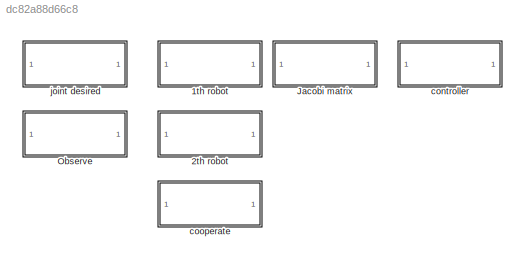
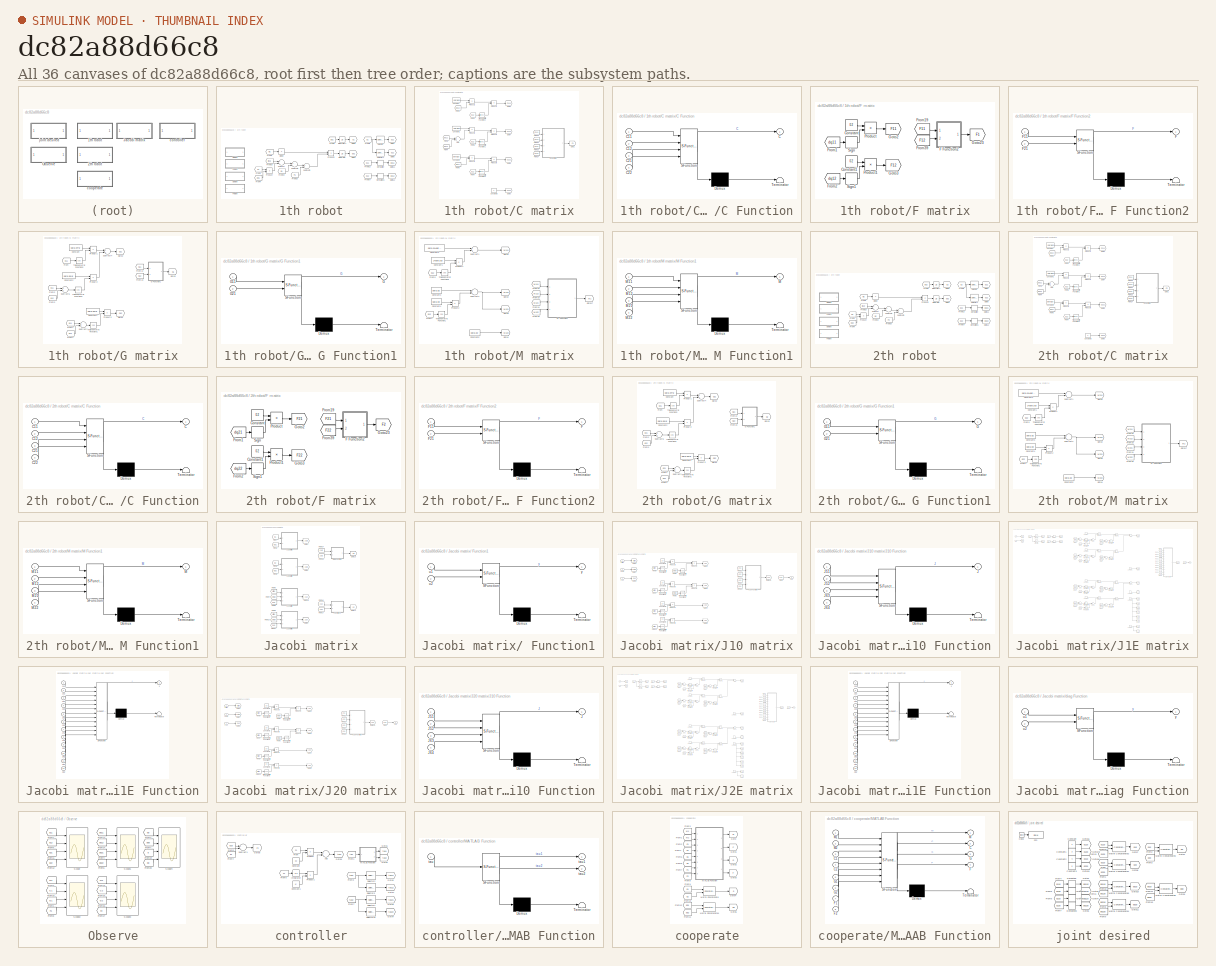
[diagram: thumbnail index - all 36 canvases of the model, root first then tree order]
MODEL slx_dc82a88d66c8
KIND model
CONFIG AbsTol = auto
CONFIG FixedStep = 0.001
CONFIG MaxStep = auto
CONFIG MinStep = auto
CONFIG RelTol = 1e-3
CONFIG SampleTimeConstraint = Unconstrained
CONFIG Solver = ode4
CONFIG SolverMode = Auto
CONFIG SolverName = ode4
CONFIG StartTime = 0.0
CONFIG StopTime = tmax
BLOCK [SubSystem] 1th robot
  Ports = []
  RequestExecContextInheritance = off
  Variant = off
BLOCK [SubSystem] 1th robot/C matrix
  Ports = []
  RequestExecContextInheritance = off
  Variant = off
BLOCK [Sum] 1th robot/C matrix/Add
  InputSameDT = off
  OutDataTypeStr = Inherit: Inherit via internal rule
  Ports = [2, 1]
  SaturateOnIntegerOverflow = off
BLOCK [SubSystem] 1th robot/C matrix/C Function
  ErrorFcn = Stateflow.Translate.translate
  PermitHierarchicalResolution = ExplicitOnly
  Ports = [4, 1]
  RequestExecContextInheritance = off
  SFBlockType = MATLAB Function
  TreatAsAtomicUnit = on
  Variant = off
BLOCK [Demux] 1th robot/C matrix/C Function/ Demux 
  Outputs = 1
  Ports = [1, 1]
BLOCK [S-Function] 1th robot/C matrix/C Function/ SFunction 
  EnableBusSupport = on
  FunctionName = sf_sfun
  PortCounts = [4 2]
  Ports = [4, 2]
  SFunctionDeploymentMode = off
  Tag = Stateflow S-Function common_3 3
BLOCK [Terminator] 1th robot/C matrix/C Function/ Terminator 
BLOCK [Outport] 1th robot/C matrix/C Function/C
  IconDisplay = Port number
BLOCK [Inport] 1th robot/C matrix/C Function/C11
  IconDisplay = Port number
BLOCK [Inport] 1th robot/C matrix/C Function/C12
  IconDisplay = Port number
  Port = 2
BLOCK [Inport] 1th robot/C matrix/C Function/C21
  IconDisplay = Port number
  Port = 3
BLOCK [Inport] 1th robot/C matrix/C Function/C22
  IconDisplay = Port number
  Port = 4
BLOCK [Constant] 1th robot/C matrix/Constant
  Value = -para.p3
BLOCK [Constant] 1th robot/C matrix/Constant1
  Value = -para.p3
BLOCK [Constant] 1th robot/C matrix/Constant2
  Value = para.p3
BLOCK [Constant] 1th robot/C matrix/Constant3
  Value = 0
BLOCK [From] 1th robot/C matrix/From1
  GotoTag = dq12
  TagVisibility = global
BLOCK [From] 1th robot/C matrix/From2
  GotoTag = q12
  TagVisibility = global
BLOCK [From] 1th robot/C matrix/From22
  GotoTag = C112
  TagVisibility = global
BLOCK [From] 1th robot/C matrix/From23
  GotoTag = C121
  TagVisibility = global
BLOCK [From] 1th robot/C matrix/From24
  GotoTag = C122
  TagVisibility = global
BLOCK [From] 1th robot/C matrix/From25
  GotoTag = C111
  TagVisibility = global
BLOCK [From] 1th robot/C matrix/From3
  GotoTag = dq11
  TagVisibility = global
BLOCK [From] 1th robot/C matrix/From4
  GotoTag = dq12
  TagVisibility = global
BLOCK [From] 1th robot/C matrix/From5
  GotoTag = q12
  TagVisibility = global
BLOCK [From] 1th robot/C matrix/From6
  GotoTag = dq11
  TagVisibility = global
BLOCK [From] 1th robot/C matrix/From7
  GotoTag = q12
  TagVisibility = global
BLOCK [Goto] 1th robot/C matrix/Goto1
  GotoTag = C1
  TagVisibility = global
BLOCK [Goto] 1th robot/C matrix/Goto3
  GotoTag = C111
  TagVisibility = global
BLOCK [Goto] 1th robot/C matrix/Goto4
  GotoTag = C112
  TagVisibility = global
BLOCK [Goto] 1th robot/C matrix/Goto5
  GotoTag = C121
  TagVisibility = global
BLOCK [Goto] 1th robot/C matrix/Goto6
  GotoTag = C122
  TagVisibility = global
BLOCK [Product] 1th robot/C matrix/Product1
  InputSameDT = off
  OutDataTypeStr = Inherit: Inherit via internal rule
  Ports = [2, 1]
  RndMeth = Floor
  SaturateOnIntegerOverflow = off
BLOCK [Product] 1th robot/C matrix/Product2
  InputSameDT = off
  OutDataTypeStr = Inherit: Inherit via internal rule
  Ports = [2, 1]
  RndMeth = Floor
  SaturateOnIntegerOverflow = off
BLOCK [Product] 1th robot/C matrix/Product3
  InputSameDT = off
  OutDataTypeStr = Inherit: Inherit via internal rule
  Ports = [2, 1]
  RndMeth = Floor
  SaturateOnIntegerOverflow = off
BLOCK [Product] 1th robot/C matrix/Product4
  InputSameDT = off
  OutDataTypeStr = Inherit: Inherit via internal rule
  Ports = [2, 1]
  RndMeth = Floor
  SaturateOnIntegerOverflow = off
BLOCK [Product] 1th robot/C matrix/Product5
  InputSameDT = off
  OutDataTypeStr = Inherit: Inherit via internal rule
  Ports = [2, 1]
  RndMeth = Floor
  SaturateOnIntegerOverflow = off
BLOCK [Product] 1th robot/C matrix/Product6
  InputSameDT = off
  OutDataTypeStr = Inherit: Inherit via internal rule
  Ports = [2, 1]
  RndMeth = Floor
  SaturateOnIntegerOverflow = off
BLOCK [Trigonometry] 1th robot/C matrix/Tri gonometric Function3
  Ports = [1, 1]
BLOCK [Trigonometry] 1th robot/C matrix/Trigonometric Function1
  Ports = [1, 1]
BLOCK [Trigonometry] 1th robot/C matrix/Trigonometric Function2
  Ports = [1, 1]
BLOCK [Derivative] 1th robot/Derivative
BLOCK [Derivative] 1th robot/Derivative1 
BLOCK [Product] 1th robot/Divide
  InputSameDT = off
  Inputs = /
  Multiplication = Matrix(*)
  OutDataTypeStr = Inherit: Inherit via internal rule
  Ports = [1, 1]
  RndMeth = Floor
  SaturateOnIntegerOverflow = off
BLOCK [SubSystem] 1th robot/F matrix
  Ports = []
  RequestExecContextInheritance = off
  Variant = off
BLOCK [Constant] 1th robot/F matrix/Constant
  Value = 0.2
BLOCK [Constant] 1th robot/F matrix/Constant1
  Value = 0.2
BLOCK [SubSystem] 1th robot/F matrix/F Function2
  ErrorFcn = Stateflow.Translate.translate
  PermitHierarchicalResolution = ExplicitOnly
  Ports = [2, 1]
  RequestExecContextInheritance = off
  SFBlockType = MATLAB Function
  TreatAsAtomicUnit = on
  Variant = off
BLOCK [Demux] 1th robot/F matrix/F Function2/ Demux 
  Outputs = 1
  Ports = [1, 1]
BLOCK [S-Function] 1th robot/F matrix/F Function2/ SFunction 
  EnableBusSupport = on
  FunctionName = sf_sfun
  PortCounts = [2 2]
  Ports = [2, 2]
  SFunctionDeploymentMode = off
  Tag = Stateflow S-Function common_3 2
BLOCK [Terminator] 1th robot/F matrix/F Function2/ Terminator 
BLOCK [Outport] 1th robot/F matrix/F Function2/F
  IconDisplay = Port number
BLOCK [Inport] 1th robot/F matrix/F Function2/F11
  IconDisplay = Port number
BLOCK [Inport] 1th robot/F matrix/F Function2/F21
  IconDisplay = Port number
  Port = 2
BLOCK [From] 1th robot/F matrix/From1
  GotoTag = dq11
  TagVisibility = global
BLOCK [From] 1th robot/F matrix/From19
  GotoTag = F11
  TagVisibility = global
BLOCK [From] 1th robot/F matrix/From2
  GotoTag = dq12
  TagVisibility = global
BLOCK [From] 1th robot/F matrix/From39
  GotoTag = F12
  TagVisibility = global
BLOCK [Goto] 1th robot/F matrix/Goto2
  GotoTag = F11
  TagVisibility = global
BLOCK [Goto] 1th robot/F matrix/Goto23
  GotoTag = F1
  TagVisibility = global
BLOCK [Goto] 1th robot/F matrix/Goto3
  GotoTag = F12
  TagVisibility = global
BLOCK [Product] 1th robot/F matrix/Product
  InputSameDT = off
  OutDataTypeStr = Inherit: Inherit via internal rule
  Ports = [2, 1]
  RndMeth = Floor
  SaturateOnIntegerOverflow = off
BLOCK [Product] 1th robot/F matrix/Product1
  InputSameDT = off
  OutDataTypeStr = Inherit: Inherit via internal rule
  Ports = [2, 1]
  RndMeth = Floor
  SaturateOnIntegerOverflow = off
BLOCK [Signum] 1th robot/F matrix/Sign
BLOCK [Signum] 1th robot/F matrix/Sign1
BLOCK [From] 1th robot/Fro m20
  GotoTag = F1
  TagVisibility = global
BLOCK [From] 1th robot/From1
  GotoTag = C1
  TagVisibility = global
BLOCK [From] 1th robot/From13
  GotoTag = q11
  TagVisibility = global
BLOCK [From] 1th robot/From14
  GotoTag = q12
  TagVisibility = global
BLOCK [From] 1th robot/From18
  GotoTag = tau1
  TagVisibility = global
BLOCK [From] 1th robot/From19
  GotoTag = G1
  TagVisibility = global
BLOCK [From] 1th robot/From2
  GotoTag = M1
  TagVisibility = global
BLOCK [From] 1th robot/From3
  GotoTag = dq1
  TagVisibility = global
BLOCK [From] 1th robot/From4
  GotoTag = dq1
  TagVisibility = global
BLOCK [From] 1th robot/From5 
  GotoTag = q1
  TagVisibility = global
BLOCK [SubSystem] 1th robot/G matrix
  Ports = []
  RequestExecContextInheritance = off
  Variant = off
BLOCK [Constant] 1th robot/G matrix/Constant
  Value = para.p4*g
BLOCK [Constant] 1th robot/G matrix/Constant1
  Value = para.p5*g
BLOCK [Constant] 1th robot/G matrix/Constant2
  Value = para.p5*g
BLOCK [From] 1th robot/G matrix/From
  GotoTag = q11
  TagVisibility = global
BLOCK [From] 1th robot/G matrix/From1
  GotoTag = q11
  TagVisibility = global
BLOCK [From] 1th robot/G matrix/From10
  GotoTag = G12
  TagVisibility = global
BLOCK [From] 1th robot/G matrix/From12
  GotoTag = G11
  TagVisibility = global
BLOCK [From] 1th robot/G matrix/From2
  GotoTag = q11
  TagVisibility = global
BLOCK [From] 1th robot/G matrix/From3
  GotoTag = q12
  TagVisibility = global
BLOCK [From] 1th robot/G matrix/From4
  GotoTag = q12
  TagVisibility = global
BLOCK [SubSystem] 1th robot/G matrix/G Function1
  ErrorFcn = Stateflow.Translate.translate
  PermitHierarchicalResolution = ExplicitOnly
  Ports = [2, 1]
  RequestExecContextInheritance = off
  SFBlockType = MATLAB Function
  TreatAsAtomicUnit = on
  Variant = off
BLOCK [Demux] 1th robot/G matrix/G Function1/ Demux 
  Outputs = 1
  Ports = [1, 1]
BLOCK [S-Function] 1th robot/G matrix/G Function1/ SFunction 
  EnableBusSupport = on
  FunctionName = sf_sfun
  PortCounts = [2 2]
  Ports = [2, 2]
  SFunctionDeploymentMode = off
  Tag = Stateflow S-Function common_3 4
BLOCK [Terminator] 1th robot/G matrix/G Function1/ Terminator 
BLOCK [Outport] 1th robot/G matrix/G Function1/G
  IconDisplay = Port number
BLOCK [Inport] 1th robot/G matrix/G Function1/G11
  IconDisplay = Port number
BLOCK [Inport] 1th robot/G matrix/G Function1/G21
  IconDisplay = Port number
  Port = 2
BLOCK [Goto] 1th robot/G matrix/Goto1
  GotoTag = G12
  TagVisibility = global
BLOCK [Goto] 1th robot/G matrix/Goto2
  GotoTag = G11
  TagVisibility = global
BLOCK [Goto] 1th robot/G matrix/Goto3
  GotoTag = G1
  TagVisibility = global
BLOCK [Product] 1th robot/G matrix/Product1
  InputSameDT = off
  OutDataTypeStr = Inherit: Inherit via internal rule
  Ports = [2, 1]
  RndMeth = Floor
  SaturateOnIntegerOverflow = off
BLOCK [Product] 1th robot/G matrix/Product2
  InputSameDT = off
  OutDataTypeStr = Inherit: Inherit via internal rule
  Ports = [2, 1]
  RndMeth = Floor
  SaturateOnIntegerOverflow = off
BLOCK [Product] 1th robot/G matrix/Product3
  InputSameDT = off
  OutDataTypeStr = Inherit: Inherit via internal rule
  Ports = [2, 1]
  RndMeth = Floor
  SaturateOnIntegerOverflow = off
BLOCK [Sum] 1th robot/G matrix/Subtract1
  InputSameDT = off
  OutDataTypeStr = Inherit: Inherit via internal rule
  Ports = [2, 1]
  SaturateOnIntegerOverflow = off
BLOCK [Sum] 1th robot/G matrix/Subtract4
  InputSameDT = off
  OutDataTypeStr = Inherit: Inherit via internal rule
  Ports = [2, 1]
  SaturateOnIntegerOverflow = off
BLOCK [Sum] 1th robot/G matrix/Subtract5
  InputSameDT = off
  OutDataTypeStr = Inherit: Inherit via internal rule
  Ports = [2, 1]
  SaturateOnIntegerOverflow = off
BLOCK [Trigonometry] 1th robot/G matrix/Trigonometric Function1
  Operator = cos
  Ports = [1, 1]
BLOCK [Trigonometry] 1th robot/G matrix/Trigonometric Function2
  Operator = cos
  Ports = [1, 1]
BLOCK [Trigonometry] 1th robot/G matrix/Trigonometric Function3
  Operator = cos
  Ports = [1, 1]
BLOCK [Goto] 1th robot/Goto1
  GotoTag = q11
  TagVisibility = global
BLOCK [Goto] 1th robot/Goto11
  GotoTag = dq11
  TagVisibility = global
BLOCK [Goto] 1th robot/Goto12
  GotoTag = dq12
  TagVisibility = global
BLOCK [Goto] 1th robot/Goto4
  GotoTag = dq1
  TagVisibility = global
BLOCK [Goto] 1th robot/Goto5
  GotoTag = q1
  TagVisibility = global
BLOCK [Goto] 1th robot/Goto6
  GotoTag = q12
  TagVisibility = global
BLOCK [Integrator] 1th robot/Integrator
  InitialCondition = dq1_init
  Ports = [1, 1]
BLOCK [Integrator] 1th robot/Integrator1
  InitialCondition = q1_init
  Ports = [1, 1]
BLOCK [SubSystem] 1th robot/M matrix
  Ports = []
  RequestExecContextInheritance = off
  Variant = off
BLOCK [Constant] 1th robot/M matrix/Constant1
  Value = 2*para.p3
BLOCK [Constant] 1th robot/M matrix/Constant2
  Value = para.p1+para.p2
BLOCK [Constant] 1th robot/M matrix/Constant3
  Value = para.p2
BLOCK [Constant] 1th robot/M matrix/Constant4
  Value = para.p3
BLOCK [Constant] 1th robot/M matrix/Constant5
  Value = para.p2
BLOCK [From] 1th robot/M matrix/From1
  GotoTag = q12
  TagVisibility = global
BLOCK [From] 1th robot/M matrix/From32
  GotoTag = M111
  TagVisibility = global
BLOCK [From] 1th robot/M matrix/From33
  GotoTag = M112
  TagVisibility = global
BLOCK [From] 1th robot/M matrix/From34
  GotoTag = M121
  TagVisibility = global
BLOCK [From] 1th robot/M matrix/From35
  GotoTag = M122
  TagVisibility = global
BLOCK [From] 1th robot/M matrix/From5
  GotoTag = q12
  TagVisibility = global
BLOCK [Goto] 1th robot/M matrix/Goto1
  GotoTag = M111
  TagVisibility = global
BLOCK [Goto] 1th robot/M matrix/Goto17
  GotoTag = M1
  TagVisibility = global
BLOCK [Goto] 1th robot/M matrix/Goto2
  GotoTag = M112
  TagVisibility = global
BLOCK [Goto] 1th robot/M matrix/Goto3
  GotoTag = M121
  TagVisibility = global
BLOCK [Goto] 1th robot/M matrix/Goto4
  GotoTag = M122
  TagVisibility = global
BLOCK [SubSystem] 1th robot/M matrix/M Function1
  ErrorFcn = Stateflow.Translate.translate
  PermitHierarchicalResolution = ExplicitOnly
  Ports = [4, 1]
  RequestExecContextInheritance = off
  SFBlockType = MATLAB Function
  TreatAsAtomicUnit = on
  Variant = off
BLOCK [Demux] 1th robot/M matrix/M Function1/ Demux 
  Outputs = 1
  Ports = [1, 1]
BLOCK [S-Function] 1th robot/M matrix/M Function1/ SFunction 
  EnableBusSupport = on
  FunctionName = sf_sfun
  PortCounts = [4 2]
  Ports = [4, 2]
  SFunctionDeploymentMode = off
  Tag = Stateflow S-Function common_3 15
BLOCK [Terminator] 1th robot/M matrix/M Function1/ Terminator 
BLOCK [Outport] 1th robot/M matrix/M Function1/M
  IconDisplay = Port number
BLOCK [Inport] 1th robot/M matrix/M Function1/M11
  IconDisplay = Port number
BLOCK [Inport] 1th robot/M matrix/M Function1/M12
  IconDisplay = Port number
  Port = 2
BLOCK [Inport] 1th robot/M matrix/M Function1/M21
  IconDisplay = Port number
  Port = 3
BLOCK [Inport] 1th robot/M matrix/M Function1/M22
  IconDisplay = Port number
  Port = 4
BLOCK [Product] 1th robot/M matrix/Product1
  InputSameDT = off
  OutDataTypeStr = Inherit: Inherit via internal rule
  Ports = [2, 1]
  RndMeth = Floor
  SaturateOnIntegerOverflow = off
BLOCK [Product] 1th robot/M matrix/Product2
  InputSameDT = off
  OutDataTypeStr = Inherit: Inherit via internal rule
  Ports = [2, 1]
  RndMeth = Floor
  SaturateOnIntegerOverflow = off
BLOCK [Sum] 1th robot/M matrix/Subtract1
  InputSameDT = off
  OutDataTypeStr = Inherit: Inherit via internal rule
  Ports = [2, 1]
  SaturateOnIntegerOverflow = off
BLOCK [Sum] 1th robot/M matrix/Subtract2
  InputSameDT = off
  OutDataTypeStr = Inherit: Inherit via internal rule
  Ports = [2, 1]
  SaturateOnIntegerOverflow = off
BLOCK [Trigonometry] 1th robot/M matrix/Trigonometric Function1
  Operator = cos
  Ports = [1, 1]
BLOCK [Trigonometry] 1th robot/M matrix/Trigonometric Function8
  Operator = cos
  Ports = [1, 1]
BLOCK [Product] 1th robot/Product
  InputSameDT = off
  Multiplication = Matrix(*)
  OutDataTypeStr = Inherit: Inherit via internal rule
  Ports = [2, 1]
  RndMeth = Floor
  SaturateOnIntegerOverflow = off
BLOCK [Product] 1th robot/Product1
  InputSameDT = off
  Multiplication = Matrix(*)
  OutDataTypeStr = Inherit: Inherit via internal rule
  Ports = [2, 1]
  RndMeth = Floor
  SaturateOnIntegerOverflow = off
BLOCK [Selector] 1th robot/Selector
  IndexOptions = Index vector (dialog)
  Indices = [1]
  InputPortWidth = 2
  OutputSizes = 1
  Ports = [1, 1]
BLOCK [Selector] 1th robot/Selector1
  IndexOptions = Index vector (dialog)
  Indices = [2]
  InputPortWidth = 2
  OutputSizes = 1
  Ports = [1, 1]
BLOCK [Sum] 1th robot/Subtract
  InputSameDT = off
  Inputs = +-
  OutDataTypeStr = Inherit: Inherit via internal rule
  Ports = [2, 1]
  SaturateOnIntegerOverflow = off
BLOCK [Sum] 1th robot/Subtract2
  InputSameDT = off
  Inputs = +-
  OutDataTypeStr = Inherit: Inherit via internal rule
  Ports = [2, 1]
  SaturateOnIntegerOverflow = off
BLOCK [Sum] 1th robot/Subtract3
  InputSameDT = off
  Inputs = +-
  OutDataTypeStr = Inherit: Inherit via internal rule
  Ports = [2, 1]
  SaturateOnIntegerOverflow = off
BLOCK [SubSystem] 2th robot
  Ports = []
  RequestExecContextInheritance = off
  Variant = off
BLOCK [SubSystem] 2th robot/C matrix
  Ports = []
  RequestExecContextInheritance = off
  Variant = off
BLOCK [Sum] 2th robot/C matrix/Add
  InputSameDT = off
  OutDataTypeStr = Inherit: Inherit via internal rule
  Ports = [2, 1]
  SaturateOnIntegerOverflow = off
BLOCK [SubSystem] 2th robot/C matrix/C Function
  ErrorFcn = Stateflow.Translate.translate
  PermitHierarchicalResolution = ExplicitOnly
  Ports = [4, 1]
  RequestExecContextInheritance = off
  SFBlockType = MATLAB Function
  TreatAsAtomicUnit = on
  Variant = off
BLOCK [Demux] 2th robot/C matrix/C Function/ Demux 
  Outputs = 1
  Ports = [1, 1]
BLOCK [S-Function] 2th robot/C matrix/C Function/ SFunction 
  EnableBusSupport = on
  FunctionName = sf_sfun
  PortCounts = [4 2]
  Ports = [4, 2]
  SFunctionDeploymentMode = off
  Tag = Stateflow S-Function common_3 16
BLOCK [Terminator] 2th robot/C matrix/C Function/ Terminator 
BLOCK [Outport] 2th robot/C matrix/C Function/C
  IconDisplay = Port number
BLOCK [Inport] 2th robot/C matrix/C Function/C11
  IconDisplay = Port number
BLOCK [Inport] 2th robot/C matrix/C Function/C12
  IconDisplay = Port number
  Port = 2
BLOCK [Inport] 2th robot/C matrix/C Function/C21
  IconDisplay = Port number
  Port = 3
BLOCK [Inport] 2th robot/C matrix/C Function/C22
  IconDisplay = Port number
  Port = 4
BLOCK [Constant] 2th robot/C matrix/Constant
  Value = -para.p3
BLOCK [Constant] 2th robot/C matrix/Constant1
  Value = -para.p3
BLOCK [Constant] 2th robot/C matrix/Constant2
  Value = para.p3
BLOCK [Constant] 2th robot/C matrix/Constant3
  Value = 0
BLOCK [From] 2th robot/C matrix/From1
  GotoTag = dq22
  TagVisibility = global
BLOCK [From] 2th robot/C matrix/From2
  GotoTag = q22
  TagVisibility = global
BLOCK [From] 2th robot/C matrix/From22
  GotoTag = C212
  TagVisibility = global
BLOCK [From] 2th robot/C matrix/From23
  GotoTag = C221
  TagVisibility = global
BLOCK [From] 2th robot/C matrix/From24
  GotoTag = C222
  TagVisibility = global
BLOCK [From] 2th robot/C matrix/From25
  GotoTag = C211
  TagVisibility = global
BLOCK [From] 2th robot/C matrix/From3
  GotoTag = dq21
  TagVisibility = global
BLOCK [From] 2th robot/C matrix/From4
  GotoTag = dq22
  TagVisibility = global
BLOCK [From] 2th robot/C matrix/From5
  GotoTag = q22
  TagVisibility = global
BLOCK [From] 2th robot/C matrix/From6
  GotoTag = dq21
  TagVisibility = global
BLOCK [From] 2th robot/C matrix/From7
  GotoTag = q22
  TagVisibility = global
BLOCK [Goto] 2th robot/C matrix/Goto1
  GotoTag = C2
  TagVisibility = global
BLOCK [Goto] 2th robot/C matrix/Goto3
  GotoTag = C211
  TagVisibility = global
BLOCK [Goto] 2th robot/C matrix/Goto4
  GotoTag = C212
  TagVisibility = global
BLOCK [Goto] 2th robot/C matrix/Goto5
  GotoTag = C221
  TagVisibility = global
BLOCK [Goto] 2th robot/C matrix/Goto6
  GotoTag = C222
  TagVisibility = global
BLOCK [Product] 2th robot/C matrix/Product1
  InputSameDT = off
  OutDataTypeStr = Inherit: Inherit via internal rule
  Ports = [2, 1]
  RndMeth = Floor
  SaturateOnIntegerOverflow = off
BLOCK [Product] 2th robot/C matrix/Product2
  InputSameDT = off
  OutDataTypeStr = Inherit: Inherit via internal rule
  Ports = [2, 1]
  RndMeth = Floor
  SaturateOnIntegerOverflow = off
BLOCK [Product] 2th robot/C matrix/Product3
  InputSameDT = off
  OutDataTypeStr = Inherit: Inherit via internal rule
  Ports = [2, 1]
  RndMeth = Floor
  SaturateOnIntegerOverflow = off
BLOCK [Product] 2th robot/C matrix/Product4
  InputSameDT = off
  OutDataTypeStr = Inherit: Inherit via internal rule
  Ports = [2, 1]
  RndMeth = Floor
  SaturateOnIntegerOverflow = off
BLOCK [Product] 2th robot/C matrix/Product5
  InputSameDT = off
  OutDataTypeStr = Inherit: Inherit via internal rule
  Ports = [2, 1]
  RndMeth = Floor
  SaturateOnIntegerOverflow = off
BLOCK [Product] 2th robot/C matrix/Product6
  InputSameDT = off
  OutDataTypeStr = Inherit: Inherit via internal rule
  Ports = [2, 1]
  RndMeth = Floor
  SaturateOnIntegerOverflow = off
BLOCK [Trigonometry] 2th robot/C matrix/Tri gonometric Function3
  Ports = [1, 1]
BLOCK [Trigonometry] 2th robot/C matrix/Trigonometric Function1
  Ports = [1, 1]
BLOCK [Trigonometry] 2th robot/C matrix/Trigonometric Function2
  Ports = [1, 1]
BLOCK [Derivative] 2th robot/Derivative
BLOCK [Derivative] 2th robot/Derivative1 
BLOCK [Product] 2th robot/Divide
  InputSameDT = off
  Inputs = /
  Multiplication = Matrix(*)
  OutDataTypeStr = Inherit: Inherit via internal rule
  Ports = [1, 1]
  RndMeth = Floor
  SaturateOnIntegerOverflow = off
BLOCK [SubSystem] 2th robot/F matrix
  Ports = []
  RequestExecContextInheritance = off
  Variant = off
BLOCK [Constant] 2th robot/F matrix/Constant
  Value = 0.2
BLOCK [Constant] 2th robot/F matrix/Constant1
  Value = 0.2
BLOCK [SubSystem] 2th robot/F matrix/F Function2
  ErrorFcn = Stateflow.Translate.translate
  PermitHierarchicalResolution = ExplicitOnly
  Ports = [2, 1]
  RequestExecContextInheritance = off
  SFBlockType = MATLAB Function
  TreatAsAtomicUnit = on
  Variant = off
BLOCK [Demux] 2th robot/F matrix/F Function2/ Demux 
  Outputs = 1
  Ports = [1, 1]
BLOCK [S-Function] 2th robot/F matrix/F Function2/ SFunction 
  EnableBusSupport = on
  FunctionName = sf_sfun
  PortCounts = [2 2]
  Ports = [2, 2]
  SFunctionDeploymentMode = off
  Tag = Stateflow S-Function common_3 17
BLOCK [Terminator] 2th robot/F matrix/F Function2/ Terminator 
BLOCK [Outport] 2th robot/F matrix/F Function2/F
  IconDisplay = Port number
BLOCK [Inport] 2th robot/F matrix/F Function2/F11
  IconDisplay = Port number
BLOCK [Inport] 2th robot/F matrix/F Function2/F21
  IconDisplay = Port number
  Port = 2
BLOCK [From] 2th robot/F matrix/From1
  GotoTag = dq21
  TagVisibility = global
BLOCK [From] 2th robot/F matrix/From19
  GotoTag = F21
  TagVisibility = global
BLOCK [From] 2th robot/F matrix/From2
  GotoTag = dq22
  TagVisibility = global
BLOCK [From] 2th robot/F matrix/From39
  GotoTag = F22
  TagVisibility = global
BLOCK [Goto] 2th robot/F matrix/Goto2
  GotoTag = F21
  TagVisibility = global
BLOCK [Goto] 2th robot/F matrix/Goto23
  GotoTag = F2
  TagVisibility = global
BLOCK [Goto] 2th robot/F matrix/Goto3
  GotoTag = F22
  TagVisibility = global
BLOCK [Product] 2th robot/F matrix/Product
  InputSameDT = off
  OutDataTypeStr = Inherit: Inherit via internal rule
  Ports = [2, 1]
  RndMeth = Floor
  SaturateOnIntegerOverflow = off
BLOCK [Product] 2th robot/F matrix/Product1
  InputSameDT = off
  OutDataTypeStr = Inherit: Inherit via internal rule
  Ports = [2, 1]
  RndMeth = Floor
  SaturateOnIntegerOverflow = off
BLOCK [Signum] 2th robot/F matrix/Sign
BLOCK [Signum] 2th robot/F matrix/Sign1
BLOCK [From] 2th robot/Fro m20
  GotoTag = F2
  TagVisibility = global
BLOCK [From] 2th robot/From1
  GotoTag = C2
  TagVisibility = global
BLOCK [From] 2th robot/From13
  GotoTag = q21
  TagVisibility = global
BLOCK [From] 2th robot/From14
  GotoTag = q22
  TagVisibility = global
BLOCK [From] 2th robot/From18
  GotoTag = tau2
BLOCK [From] 2th robot/From19
  GotoTag = G2
  TagVisibility = global
BLOCK [From] 2th robot/From2
  GotoTag = M2
  TagVisibility = global
BLOCK [From] 2th robot/From3
  GotoTag = dq2
  TagVisibility = global
BLOCK [From] 2th robot/From4
  GotoTag = dq2
  TagVisibility = global
BLOCK [From] 2th robot/From5 
  GotoTag = q2
  TagVisibility = global
BLOCK [SubSystem] 2th robot/G matrix
  Ports = []
  RequestExecContextInheritance = off
  Variant = off
BLOCK [Constant] 2th robot/G matrix/Constant
  Value = para.p4*g
BLOCK [Constant] 2th robot/G matrix/Constant1
  Value = para.p5*g
BLOCK [Constant] 2th robot/G matrix/Constant2
  Value = para.p5*g
BLOCK [From] 2th robot/G matrix/From
  GotoTag = q21
  TagVisibility = global
BLOCK [From] 2th robot/G matrix/From1
  GotoTag = q21
  TagVisibility = global
BLOCK [From] 2th robot/G matrix/From10
  GotoTag = G22
  TagVisibility = global
BLOCK [From] 2th robot/G matrix/From12
  GotoTag = G21
  TagVisibility = global
BLOCK [From] 2th robot/G matrix/From2
  GotoTag = q21
  TagVisibility = global
BLOCK [From] 2th robot/G matrix/From3
  GotoTag = q22
  TagVisibility = global
BLOCK [From] 2th robot/G matrix/From4
  GotoTag = q22
  TagVisibility = global
BLOCK [SubSystem] 2th robot/G matrix/G Function1
  ErrorFcn = Stateflow.Translate.translate
  PermitHierarchicalResolution = ExplicitOnly
  Ports = [2, 1]
  RequestExecContextInheritance = off
  SFBlockType = MATLAB Function
  TreatAsAtomicUnit = on
  Variant = off
BLOCK [Demux] 2th robot/G matrix/G Function1/ Demux 
  Outputs = 1
  Ports = [1, 1]
BLOCK [S-Function] 2th robot/G matrix/G Function1/ SFunction 
  EnableBusSupport = on
  FunctionName = sf_sfun
  PortCounts = [2 2]
  Ports = [2, 2]
  SFunctionDeploymentMode = off
  Tag = Stateflow S-Function common_3 18
BLOCK [Terminator] 2th robot/G matrix/G Function1/ Terminator 
BLOCK [Outport] 2th robot/G matrix/G Function1/G
  IconDisplay = Port number
BLOCK [Inport] 2th robot/G matrix/G Function1/G11
  IconDisplay = Port number
BLOCK [Inport] 2th robot/G matrix/G Function1/G21
  IconDisplay = Port number
  Port = 2
BLOCK [Goto] 2th robot/G matrix/Goto1
  GotoTag = G22
  TagVisibility = global
BLOCK [Goto] 2th robot/G matrix/Goto2
  GotoTag = G21
  TagVisibility = global
BLOCK [Goto] 2th robot/G matrix/Goto3
  GotoTag = G2
  TagVisibility = global
BLOCK [Product] 2th robot/G matrix/Product1
  InputSameDT = off
  OutDataTypeStr = Inherit: Inherit via internal rule
  Ports = [2, 1]
  RndMeth = Floor
  SaturateOnIntegerOverflow = off
BLOCK [Product] 2th robot/G matrix/Product2
  InputSameDT = off
  OutDataTypeStr = Inherit: Inherit via internal rule
  Ports = [2, 1]
  RndMeth = Floor
  SaturateOnIntegerOverflow = off
BLOCK [Product] 2th robot/G matrix/Product3
  InputSameDT = off
  OutDataTypeStr = Inherit: Inherit via internal rule
  Ports = [2, 1]
  RndMeth = Floor
  SaturateOnIntegerOverflow = off
BLOCK [Sum] 2th robot/G matrix/Subtract1
  InputSameDT = off
  OutDataTypeStr = Inherit: Inherit via internal rule
  Ports = [2, 1]
  SaturateOnIntegerOverflow = off
BLOCK [Sum] 2th robot/G matrix/Subtract4
  InputSameDT = off
  OutDataTypeStr = Inherit: Inherit via internal rule
  Ports = [2, 1]
  SaturateOnIntegerOverflow = off
BLOCK [Sum] 2th robot/G matrix/Subtract5
  InputSameDT = off
  OutDataTypeStr = Inherit: Inherit via internal rule
  Ports = [2, 1]
  SaturateOnIntegerOverflow = off
BLOCK [Trigonometry] 2th robot/G matrix/Trigonometric Function1
  Operator = cos
  Ports = [1, 1]
BLOCK [Trigonometry] 2th robot/G matrix/Trigonometric Function2
  Operator = cos
  Ports = [1, 1]
BLOCK [Trigonometry] 2th robot/G matrix/Trigonometric Function3
  Operator = cos
  Ports = [1, 1]
BLOCK [Goto] 2th robot/Goto1
  GotoTag = q21
  TagVisibility = global
BLOCK [Goto] 2th robot/Goto11
  GotoTag = dq21
  TagVisibility = global
BLOCK [Goto] 2th robot/Goto12
  GotoTag = dq22
  TagVisibility = global
BLOCK [Goto] 2th robot/Goto4
  GotoTag = dq2
  TagVisibility = global
BLOCK [Goto] 2th robot/Goto5
  GotoTag = q2
  TagVisibility = global
BLOCK [Goto] 2th robot/Goto6
  GotoTag = q22
  TagVisibility = global
BLOCK [Integrator] 2th robot/Integrator
  InitialCondition = dq2_init
  Ports = [1, 1]
BLOCK [Integrator] 2th robot/Integrator1
  InitialCondition = q2_init
  Ports = [1, 1]
BLOCK [SubSystem] 2th robot/M matrix
  Ports = []
  RequestExecContextInheritance = off
  Variant = off
BLOCK [Constant] 2th robot/M matrix/Constant1
  Value = 2*para.p3
BLOCK [Constant] 2th robot/M matrix/Constant2
  Value = para.p1+para.p2
BLOCK [Constant] 2th robot/M matrix/Constant3
  Value = para.p2
BLOCK [Constant] 2th robot/M matrix/Constant4
  Value = para.p3
BLOCK [Constant] 2th robot/M matrix/Constant5
  Value = para.p2
BLOCK [From] 2th robot/M matrix/From1
  GotoTag = q22
  TagVisibility = global
BLOCK [From] 2th robot/M matrix/From32
  GotoTag = M211
  TagVisibility = global
BLOCK [From] 2th robot/M matrix/From33
  GotoTag = M212
  TagVisibility = global
BLOCK [From] 2th robot/M matrix/From34
  GotoTag = M221
  TagVisibility = global
BLOCK [From] 2th robot/M matrix/From35
  GotoTag = M222
  TagVisibility = global
BLOCK [From] 2th robot/M matrix/From5
  GotoTag = q22
  TagVisibility = global
BLOCK [Goto] 2th robot/M matrix/Goto1
  GotoTag = M211
  TagVisibility = global
BLOCK [Goto] 2th robot/M matrix/Goto17
  GotoTag = M2
  TagVisibility = global
BLOCK [Goto] 2th robot/M matrix/Goto2
  GotoTag = M212
  TagVisibility = global
BLOCK [Goto] 2th robot/M matrix/Goto3
  GotoTag = M221
  TagVisibility = global
BLOCK [Goto] 2th robot/M matrix/Goto4
  GotoTag = M222
  TagVisibility = global
BLOCK [SubSystem] 2th robot/M matrix/M Function1
  ErrorFcn = Stateflow.Translate.translate
  PermitHierarchicalResolution = ExplicitOnly
  Ports = [4, 1]
  RequestExecContextInheritance = off
  SFBlockType = MATLAB Function
  TreatAsAtomicUnit = on
  Variant = off
BLOCK [Demux] 2th robot/M matrix/M Function1/ Demux 
  Outputs = 1
  Ports = [1, 1]
BLOCK [S-Function] 2th robot/M matrix/M Function1/ SFunction 
  EnableBusSupport = on
  FunctionName = sf_sfun
  PortCounts = [4 2]
  Ports = [4, 2]
  SFunctionDeploymentMode = off
  Tag = Stateflow S-Function common_3 19
BLOCK [Terminator] 2th robot/M matrix/M Function1/ Terminator 
BLOCK [Outport] 2th robot/M matrix/M Function1/M
  IconDisplay = Port number
BLOCK [Inport] 2th robot/M matrix/M Function1/M11
  IconDisplay = Port number
BLOCK [Inport] 2th robot/M matrix/M Function1/M12
  IconDisplay = Port number
  Port = 2
BLOCK [Inport] 2th robot/M matrix/M Function1/M21
  IconDisplay = Port number
  Port = 3
BLOCK [Inport] 2th robot/M matrix/M Function1/M22
  IconDisplay = Port number
  Port = 4
BLOCK [Product] 2th robot/M matrix/Product1
  InputSameDT = off
  OutDataTypeStr = Inherit: Inherit via internal rule
  Ports = [2, 1]
  RndMeth = Floor
  SaturateOnIntegerOverflow = off
BLOCK [Product] 2th robot/M matrix/Product2
  InputSameDT = off
  OutDataTypeStr = Inherit: Inherit via internal rule
  Ports = [2, 1]
  RndMeth = Floor
  SaturateOnIntegerOverflow = off
BLOCK [Sum] 2th robot/M matrix/Subtract1
  InputSameDT = off
  OutDataTypeStr = Inherit: Inherit via internal rule
  Ports = [2, 1]
  SaturateOnIntegerOverflow = off
BLOCK [Sum] 2th robot/M matrix/Subtract2
  InputSameDT = off
  OutDataTypeStr = Inherit: Inherit via internal rule
  Ports = [2, 1]
  SaturateOnIntegerOverflow = off
BLOCK [Trigonometry] 2th robot/M matrix/Trigonometric Function1
  Operator = cos
  Ports = [1, 1]
BLOCK [Trigonometry] 2th robot/M matrix/Trigonometric Function8
  Operator = cos
  Ports = [1, 1]
BLOCK [Product] 2th robot/Product
  InputSameDT = off
  Multiplication = Matrix(*)
  OutDataTypeStr = Inherit: Inherit via internal rule
  Ports = [2, 1]
  RndMeth = Floor
  SaturateOnIntegerOverflow = off
BLOCK [Product] 2th robot/Product1
  InputSameDT = off
  Multiplication = Matrix(*)
  OutDataTypeStr = Inherit: Inherit via internal rule
  Ports = [2, 1]
  RndMeth = Floor
  SaturateOnIntegerOverflow = off
BLOCK [Selector] 2th robot/Selector
  IndexOptions = Index vector (dialog)
  Indices = [1]
  InputPortWidth = 2
  OutputSizes = 1
  Ports = [1, 1]
BLOCK [Selector] 2th robot/Selector1
  IndexOptions = Index vector (dialog)
  Indices = [2]
  InputPortWidth = 2
  OutputSizes = 1
  Ports = [1, 1]
BLOCK [Sum] 2th robot/Subtract
  InputSameDT = off
  Inputs = +-
  OutDataTypeStr = Inherit: Inherit via internal rule
  Ports = [2, 1]
  SaturateOnIntegerOverflow = off
BLOCK [Sum] 2th robot/Subtract2
  InputSameDT = off
  Inputs = +-
  OutDataTypeStr = Inherit: Inherit via internal rule
  Ports = [2, 1]
  SaturateOnIntegerOverflow = off
BLOCK [Sum] 2th robot/Subtract3
  InputSameDT = off
  Inputs = +-
  OutDataTypeStr = Inherit: Inherit via internal rule
  Ports = [2, 1]
  SaturateOnIntegerOverflow = off
BLOCK [SubSystem] Jacobi matrix
  Commented = on
  Ports = []
  RequestExecContextInheritance = off
  Variant = off
BLOCK [SubSystem] Jacobi matrix/ Function1
  ErrorFcn = Stateflow.Translate.translate
  PermitHierarchicalResolution = ExplicitOnly
  Ports = [2, 1]
  RequestExecContextInheritance = off
  SFBlockType = MATLAB Function
  TreatAsAtomicUnit = on
  Variant = off
BLOCK [Demux] Jacobi matrix/ Function1/ Demux 
  Outputs = 1
  Ports = [1, 1]
BLOCK [S-Function] Jacobi matrix/ Function1/ SFunction 
  EnableBusSupport = on
  FunctionName = sf_sfun
  PortCounts = [2 2]
  Ports = [2, 2]
  SFunctionDeploymentMode = off
  Tag = Stateflow S-Function common_3 14
BLOCK [Terminator] Jacobi matrix/ Function1/ Terminator 
BLOCK [Inport] Jacobi matrix/ Function1/u1
  IconDisplay = Port number
BLOCK [Inport] Jacobi matrix/ Function1/u2
  IconDisplay = Port number
  Port = 2
BLOCK [Outport] Jacobi matrix/ Function1/y
  IconDisplay = Port number
BLOCK [From] Jacobi matrix/From
  GotoTag = q1
BLOCK [From] Jacobi matrix/From1
  GotoTag = dq1
BLOCK [From] Jacobi matrix/From10
  GotoTag = zeta0
BLOCK [From] Jacobi matrix/From11
  GotoTag = nu0
BLOCK [From] Jacobi matrix/From14
  GotoTag = J1E
BLOCK [From] Jacobi matrix/From15
  GotoTag = J2E
BLOCK [From] Jacobi matrix/From16
  GotoTag = J10
BLOCK [From] Jacobi matrix/From17
  GotoTag = J20
BLOCK [From] Jacobi matrix/From2
  GotoTag = q2
BLOCK [From] Jacobi matrix/From3
  GotoTag = dq2
BLOCK [From] Jacobi matrix/From6
  GotoTag = xita0
BLOCK [From] Jacobi matrix/From7
  GotoTag = zeta0
BLOCK [From] Jacobi matrix/From8
  GotoTag = nu0
BLOCK [From] Jacobi matrix/From9
  GotoTag = xita0
BLOCK [Goto] Jacobi matrix/Goto10
  GotoTag = JE
BLOCK [Goto] Jacobi matrix/Goto11
  GotoTag = J0
BLOCK [Goto] Jacobi matrix/Goto18
  GotoTag = J10
BLOCK [Goto] Jacobi matrix/Goto4
  GotoTag = J1E
BLOCK [Goto] Jacobi matrix/Goto5
  GotoTag = J2E
BLOCK [Goto] Jacobi matrix/Goto9
  GotoTag = J20
BLOCK [SubSystem] Jacobi matrix/J10 matrix
  Ports = [3, 1]
  RequestExecContextInheritance = off
  Variant = off
BLOCK [Constant] Jacobi matrix/J10 matrix/Constant1
  Value = l10
BLOCK [Constant] Jacobi matrix/J10 matrix/Constant2
  Value = l10
BLOCK [Constant] Jacobi matrix/J10 matrix/Constant3
  Value = l10
BLOCK [Constant] Jacobi matrix/J10 matrix/Constant4
  Value = l10
BLOCK [From] Jacobi matrix/J10 matrix/From
  GotoTag = J10
BLOCK [From] Jacobi matrix/J10 matrix/From10
  GotoTag = xita0
BLOCK [From] Jacobi matrix/J10 matrix/From12
  GotoTag = J51
BLOCK [From] Jacobi matrix/J10 matrix/From13
  GotoTag = J52
BLOCK [From] Jacobi matrix/J10 matrix/From14
  GotoTag = J63
BLOCK [From] Jacobi matrix/J10 matrix/From15
  GotoTag = J64
BLOCK [From] Jacobi matrix/J10 matrix/From5
  GotoTag = xita0
BLOCK [From] Jacobi matrix/J10 matrix/From6
  GotoTag = zeta0
BLOCK [From] Jacobi matrix/J10 matrix/From7
  GotoTag = xita0
BLOCK [From] Jacobi matrix/J10 matrix/From8
  GotoTag = zeta0
BLOCK [From] Jacobi matrix/J10 matrix/From9
  GotoTag = xita0
BLOCK [Goto] Jacobi matrix/J10 matrix/Goto1
  GotoTag = J51
BLOCK [Goto] Jacobi matrix/J10 matrix/Goto18
  GotoTag = J10
BLOCK [Goto] Jacobi matrix/J10 matrix/Goto3
  GotoTag = J52
BLOCK [Goto] Jacobi matrix/J10 matrix/Goto4
  GotoTag = J63
BLOCK [Goto] Jacobi matrix/J10 matrix/Goto5
  GotoTag = J64
BLOCK [Goto] Jacobi matrix/J10 matrix/Goto6
  GotoTag = xita0
BLOCK [Goto] Jacobi matrix/J10 matrix/Goto7
  GotoTag = zeta0
BLOCK [Goto] Jacobi matrix/J10 matrix/Goto8
  GotoTag = nu0
BLOCK [Outport] Jacobi matrix/J10 matrix/J10
  IconDisplay = Port number
BLOCK [SubSystem] Jacobi matrix/J10 matrix/J10 Function
  ErrorFcn = Stateflow.Translate.translate
  PermitHierarchicalResolution = ExplicitOnly
  Ports = [4, 1]
  RequestExecContextInheritance = off
  SFBlockType = MATLAB Function
  TreatAsAtomicUnit = on
  Variant = off
BLOCK [Demux] Jacobi matrix/J10 matrix/J10 Function/ Demux 
  Outputs = 1
  Ports = [1, 1]
BLOCK [S-Function] Jacobi matrix/J10 matrix/J10 Function/ SFunction 
  EnableBusSupport = on
  FunctionName = sf_sfun
  PortCounts = [4 2]
  Ports = [4, 2]
  SFunctionDeploymentMode = off
  Tag = Stateflow S-Function common_3 10
BLOCK [Terminator] Jacobi matrix/J10 matrix/J10 Function/ Terminator 
BLOCK [Outport] Jacobi matrix/J10 matrix/J10 Function/J
  IconDisplay = Port number
BLOCK [Inport] Jacobi matrix/J10 matrix/J10 Function/J51
  IconDisplay = Port number
BLOCK [Inport] Jacobi matrix/J10 matrix/J10 Function/J52
  IconDisplay = Port number
  Port = 2
BLOCK [Inport] Jacobi matrix/J10 matrix/J10 Function/J63
  IconDisplay = Port number
  Port = 3
BLOCK [Inport] Jacobi matrix/J10 matrix/J10 Function/J64
  IconDisplay = Port number
  Port = 4
BLOCK [Product] Jacobi matrix/J10 matrix/Product3
  InputSameDT = off
  OutDataTypeStr = Inherit: Inherit via internal rule
  Ports = [2, 1]
  RndMeth = Floor
  SaturateOnIntegerOverflow = off
BLOCK [Product] Jacobi matrix/J10 matrix/Product4
  InputSameDT = off
  OutDataTypeStr = Inherit: Inherit via internal rule
  Ports = [2, 1]
  RndMeth = Floor
  SaturateOnIntegerOverflow = off
BLOCK [Product] Jacobi matrix/J10 matrix/Product5
  InputSameDT = off
  OutDataTypeStr = Inherit: Inherit via internal rule
  Ports = [2, 1]
  RndMeth = Floor
  SaturateOnIntegerOverflow = off
BLOCK [Product] Jacobi matrix/J10 matrix/Product6
  InputSameDT = off
  OutDataTypeStr = Inherit: Inherit via internal rule
  Ports = [2, 1]
  RndMeth = Floor
  SaturateOnIntegerOverflow = off
BLOCK [Product] Jacobi matrix/J10 matrix/Product7
  InputSameDT = off
  OutDataTypeStr = Inherit: Inherit via internal rule
  Ports = [2, 1]
  RndMeth = Floor
  SaturateOnIntegerOverflow = off
BLOCK [Product] Jacobi matrix/J10 matrix/Product8
  InputSameDT = off
  OutDataTypeStr = Inherit: Inherit via internal rule
  Ports = [2, 1]
  RndMeth = Floor
  SaturateOnIntegerOverflow = off
BLOCK [Trigonometry] Jacobi matrix/J10 matrix/Trigonometric Function3
  Ports = [1, 1]
BLOCK [Trigonometry] Jacobi matrix/J10 matrix/Trigonometric Function4
  Operator = cos
  Ports = [1, 1]
BLOCK [Trigonometry] Jacobi matrix/J10 matrix/Trigonometric Function5
  Ports = [1, 1]
BLOCK [Trigonometry] Jacobi matrix/J10 matrix/Trigonometric Function6
  Operator = cos
  Ports = [1, 1]
BLOCK [Trigonometry] Jacobi matrix/J10 matrix/Trigonometric Function7
  Ports = [1, 1]
BLOCK [Trigonometry] Jacobi matrix/J10 matrix/Trigonometric Function8
  Operator = cos
  Ports = [1, 1]
BLOCK [Inport] Jacobi matrix/J10 matrix/nu0
  IconDisplay = Port number
  Port = 3
BLOCK [Inport] Jacobi matrix/J10 matrix/xita0
  IconDisplay = Port number
BLOCK [Inport] Jacobi matrix/J10 matrix/zeta0
  IconDisplay = Port number
  Port = 2
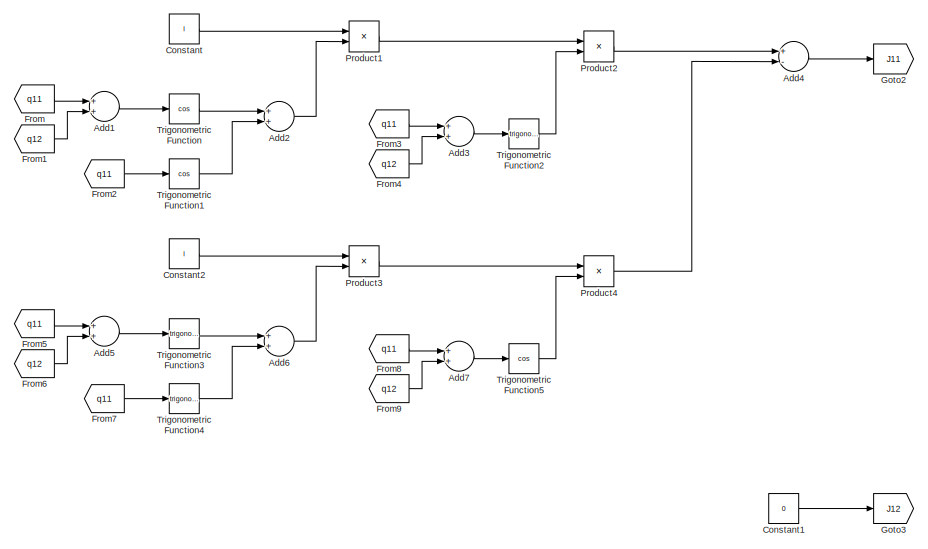
[diagram: Jacobi matrix/J1E matrix - part 1/4, top center region]
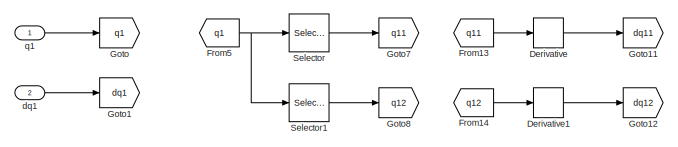
[diagram: Jacobi matrix/J1E matrix - part 2/4, top left region]
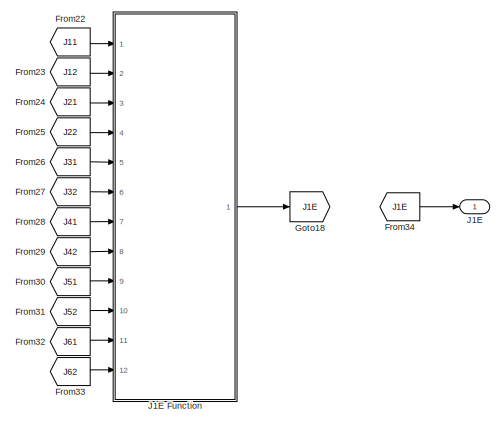
[diagram: Jacobi matrix/J1E matrix - part 3/4, top right region]
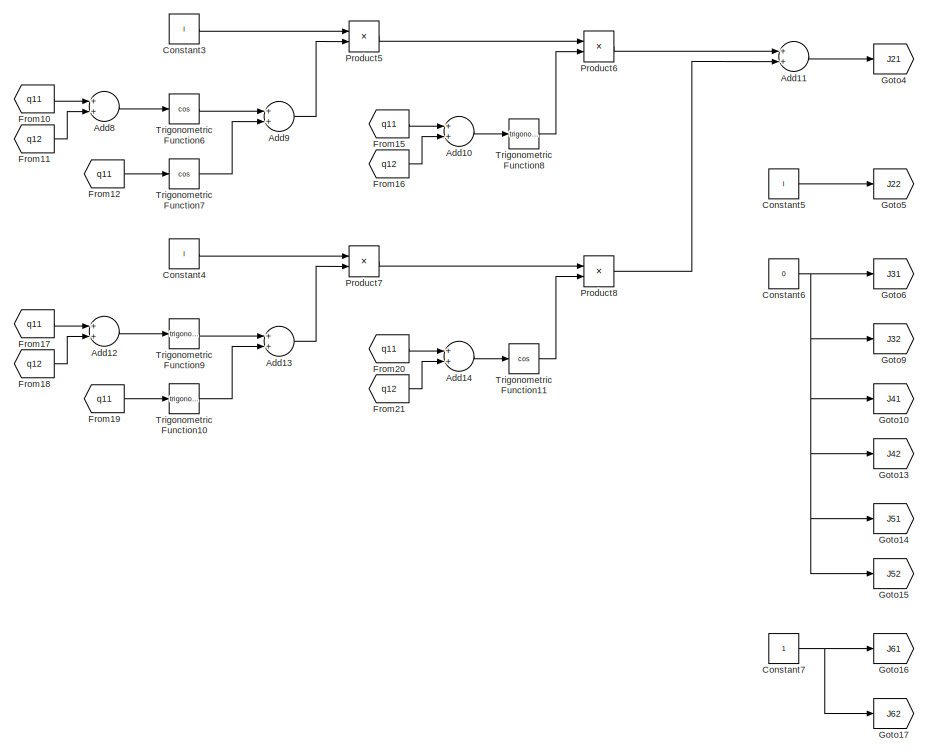
[diagram: Jacobi matrix/J1E matrix - part 4/4, bottom center region]
BLOCK [SubSystem] Jacobi matrix/J1E matrix
  Ports = [2, 1]
  RequestExecContextInheritance = off
  Variant = off
BLOCK [Sum] Jacobi matrix/J1E matrix/Add1
  InputSameDT = off
  OutDataTypeStr = Inherit: Inherit via internal rule
  Ports = [2, 1]
  SaturateOnIntegerOverflow = off
BLOCK [Sum] Jacobi matrix/J1E matrix/Add10
  InputSameDT = off
  OutDataTypeStr = Inherit: Inherit via internal rule
  Ports = [2, 1]
  SaturateOnIntegerOverflow = off
BLOCK [Sum] Jacobi matrix/J1E matrix/Add11
  InputSameDT = off
  OutDataTypeStr = Inherit: Inherit via internal rule
  Ports = [2, 1]
  SaturateOnIntegerOverflow = off
BLOCK [Sum] Jacobi matrix/J1E matrix/Add12
  InputSameDT = off
  OutDataTypeStr = Inherit: Inherit via internal rule
  Ports = [2, 1]
  SaturateOnIntegerOverflow = off
BLOCK [Sum] Jacobi matrix/J1E matrix/Add13
  InputSameDT = off
  OutDataTypeStr = Inherit: Inherit via internal rule
  Ports = [2, 1]
  SaturateOnIntegerOverflow = off
BLOCK [Sum] Jacobi matrix/J1E matrix/Add14
  InputSameDT = off
  OutDataTypeStr = Inherit: Inherit via internal rule
  Ports = [2, 1]
  SaturateOnIntegerOverflow = off
BLOCK [Sum] Jacobi matrix/J1E matrix/Add2
  InputSameDT = off
  OutDataTypeStr = Inherit: Inherit via internal rule
  Ports = [2, 1]
  SaturateOnIntegerOverflow = off
BLOCK [Sum] Jacobi matrix/J1E matrix/Add3
  InputSameDT = off
  OutDataTypeStr = Inherit: Inherit via internal rule
  Ports = [2, 1]
  SaturateOnIntegerOverflow = off
BLOCK [Sum] Jacobi matrix/J1E matrix/Add4
  InputSameDT = off
  Inputs = +-
  OutDataTypeStr = Inherit: Inherit via internal rule
  Ports = [2, 1]
  SaturateOnIntegerOverflow = off
BLOCK [Sum] Jacobi matrix/J1E matrix/Add5
  InputSameDT = off
  OutDataTypeStr = Inherit: Inherit via internal rule
  Ports = [2, 1]
  SaturateOnIntegerOverflow = off
BLOCK [Sum] Jacobi matrix/J1E matrix/Add6
  InputSameDT = off
  OutDataTypeStr = Inherit: Inherit via internal rule
  Ports = [2, 1]
  SaturateOnIntegerOverflow = off
BLOCK [Sum] Jacobi matrix/J1E matrix/Add7
  InputSameDT = off
  OutDataTypeStr = Inherit: Inherit via internal rule
  Ports = [2, 1]
  SaturateOnIntegerOverflow = off
BLOCK [Sum] Jacobi matrix/J1E matrix/Add8
  InputSameDT = off
  OutDataTypeStr = Inherit: Inherit via internal rule
  Ports = [2, 1]
  SaturateOnIntegerOverflow = off
BLOCK [Sum] Jacobi matrix/J1E matrix/Add9
  InputSameDT = off
  OutDataTypeStr = Inherit: Inherit via internal rule
  Ports = [2, 1]
  SaturateOnIntegerOverflow = off
BLOCK [Constant] Jacobi matrix/J1E matrix/Constant
  Value = l
BLOCK [Constant] Jacobi matrix/J1E matrix/Constant1
  Value = 0
BLOCK [Constant] Jacobi matrix/J1E matrix/Constant2
  Value = l
BLOCK [Constant] Jacobi matrix/J1E matrix/Constant3
  Value = l
BLOCK [Constant] Jacobi matrix/J1E matrix/Constant4
  Value = l
BLOCK [Constant] Jacobi matrix/J1E matrix/Constant5
  Value = l
BLOCK [Constant] Jacobi matrix/J1E matrix/Constant6
  Value = 0
BLOCK [Constant] Jacobi matrix/J1E matrix/Constant7
BLOCK [Derivative] Jacobi matrix/J1E matrix/Derivative
BLOCK [Derivative] Jacobi matrix/J1E matrix/Derivative1
BLOCK [From] Jacobi matrix/J1E matrix/From
  GotoTag = q11
BLOCK [From] Jacobi matrix/J1E matrix/From1
  GotoTag = q12
BLOCK [From] Jacobi matrix/J1E matrix/From10
  GotoTag = q11
BLOCK [From] Jacobi matrix/J1E matrix/From11
  GotoTag = q12
BLOCK [From] Jacobi matrix/J1E matrix/From12
  GotoTag = q11
BLOCK [From] Jacobi matrix/J1E matrix/From13
  GotoTag = q11
BLOCK [From] Jacobi matrix/J1E matrix/From14
  GotoTag = q12
BLOCK [From] Jacobi matrix/J1E matrix/From15
  GotoTag = q11
BLOCK [From] Jacobi matrix/J1E matrix/From16
  GotoTag = q12
BLOCK [From] Jacobi matrix/J1E matrix/From17
  GotoTag = q11
BLOCK [From] Jacobi matrix/J1E matrix/From18
  GotoTag = q12
BLOCK [From] Jacobi matrix/J1E matrix/From19
  GotoTag = q11
BLOCK [From] Jacobi matrix/J1E matrix/From2
  GotoTag = q11
BLOCK [From] Jacobi matrix/J1E matrix/From20
  GotoTag = q11
BLOCK [From] Jacobi matrix/J1E matrix/From21
  GotoTag = q12
BLOCK [From] Jacobi matrix/J1E matrix/From22
  GotoTag = J11
BLOCK [From] Jacobi matrix/J1E matrix/From23
  GotoTag = J12
BLOCK [From] Jacobi matrix/J1E matrix/From24
  GotoTag = J21
BLOCK [From] Jacobi matrix/J1E matrix/From25
  GotoTag = J22
BLOCK [From] Jacobi matrix/J1E matrix/From26
  GotoTag = J31
BLOCK [From] Jacobi matrix/J1E matrix/From27
  GotoTag = J32
BLOCK [From] Jacobi matrix/J1E matrix/From28
  GotoTag = J41
BLOCK [From] Jacobi matrix/J1E matrix/From29
  GotoTag = J42
BLOCK [From] Jacobi matrix/J1E matrix/From3
  GotoTag = q11
BLOCK [From] Jacobi matrix/J1E matrix/From30
  GotoTag = J51
BLOCK [From] Jacobi matrix/J1E matrix/From31
  GotoTag = J52
BLOCK [From] Jacobi matrix/J1E matrix/From32
  GotoTag = J61
BLOCK [From] Jacobi matrix/J1E matrix/From33
  GotoTag = J62
BLOCK [From] Jacobi matrix/J1E matrix/From34
  GotoTag = J1E
BLOCK [From] Jacobi matrix/J1E matrix/From4
  GotoTag = q12
BLOCK [From] Jacobi matrix/J1E matrix/From5
  GotoTag = q11
BLOCK [From] Jacobi matrix/J1E matrix/From5 
  GotoTag = q1
BLOCK [From] Jacobi matrix/J1E matrix/From6
  GotoTag = q12
BLOCK [From] Jacobi matrix/J1E matrix/From7
  GotoTag = q11
BLOCK [From] Jacobi matrix/J1E matrix/From8
  GotoTag = q11
BLOCK [From] Jacobi matrix/J1E matrix/From9
  GotoTag = q12
BLOCK [Goto] Jacobi matrix/J1E matrix/Goto
  GotoTag = q1
BLOCK [Goto] Jacobi matrix/J1E matrix/Goto1
  GotoTag = dq1
BLOCK [Goto] Jacobi matrix/J1E matrix/Goto10
  GotoTag = J41
BLOCK [Goto] Jacobi matrix/J1E matrix/Goto11
  GotoTag = dq11
BLOCK [Goto] Jacobi matrix/J1E matrix/Goto12
  GotoTag = dq12
BLOCK [Goto] Jacobi matrix/J1E matrix/Goto13
  GotoTag = J42
BLOCK [Goto] Jacobi matrix/J1E matrix/Goto14
  GotoTag = J51
BLOCK [Goto] Jacobi matrix/J1E matrix/Goto15
  GotoTag = J52
BLOCK [Goto] Jacobi matrix/J1E matrix/Goto16
  GotoTag = J61
BLOCK [Goto] Jacobi matrix/J1E matrix/Goto17
  GotoTag = J62
BLOCK [Goto] Jacobi matrix/J1E matrix/Goto18
  GotoTag = J1E
BLOCK [Goto] Jacobi matrix/J1E matrix/Goto2
  GotoTag = J11
BLOCK [Goto] Jacobi matrix/J1E matrix/Goto3
  GotoTag = J12
BLOCK [Goto] Jacobi matrix/J1E matrix/Goto4
  GotoTag = J21
BLOCK [Goto] Jacobi matrix/J1E matrix/Goto5
  GotoTag = J22
BLOCK [Goto] Jacobi matrix/J1E matrix/Goto6
  GotoTag = J31
BLOCK [Goto] Jacobi matrix/J1E matrix/Goto7
  GotoTag = q11
BLOCK [Goto] Jacobi matrix/J1E matrix/Goto8
  GotoTag = q12
BLOCK [Goto] Jacobi matrix/J1E matrix/Goto9
  GotoTag = J32
BLOCK [Outport] Jacobi matrix/J1E matrix/J1E
  IconDisplay = Port number
BLOCK [SubSystem] Jacobi matrix/J1E matrix/J1E Function
  ErrorFcn = Stateflow.Translate.translate
  PermitHierarchicalResolution = ExplicitOnly
  Ports = [12, 1]
  RequestExecContextInheritance = off
  SFBlockType = MATLAB Function
  TreatAsAtomicUnit = on
  Variant = off
BLOCK [Demux] Jacobi matrix/J1E matrix/J1E Function/ Demux 
  Outputs = 1
  Ports = [1, 1]
BLOCK [S-Function] Jacobi matrix/J1E matrix/J1E Function/ SFunction 
  EnableBusSupport = on
  FunctionName = sf_sfun
  PortCounts = [12 2]
  Ports = [12, 2]
  SFunctionDeploymentMode = off
  Tag = Stateflow S-Function common_3 8
BLOCK [Terminator] Jacobi matrix/J1E matrix/J1E Function/ Terminator 
BLOCK [Outport] Jacobi matrix/J1E matrix/J1E Function/J
  IconDisplay = Port number
BLOCK [Inport] Jacobi matrix/J1E matrix/J1E Function/J11
  IconDisplay = Port number
BLOCK [Inport] Jacobi matrix/J1E matrix/J1E Function/J12
  IconDisplay = Port number
  Port = 2
BLOCK [Inport] Jacobi matrix/J1E matrix/J1E Function/J21
  IconDisplay = Port number
  Port = 3
BLOCK [Inport] Jacobi matrix/J1E matrix/J1E Function/J22
  IconDisplay = Port number
  Port = 4
BLOCK [Inport] Jacobi matrix/J1E matrix/J1E Function/J31
  IconDisplay = Port number
  Port = 5
BLOCK [Inport] Jacobi matrix/J1E matrix/J1E Function/J32
  IconDisplay = Port number
  Port = 6
BLOCK [Inport] Jacobi matrix/J1E matrix/J1E Function/J41
  IconDisplay = Port number
  Port = 7
BLOCK [Inport] Jacobi matrix/J1E matrix/J1E Function/J42
  IconDisplay = Port number
  Port = 8
BLOCK [Inport] Jacobi matrix/J1E matrix/J1E Function/J51
  IconDisplay = Port number
  Port = 9
BLOCK [Inport] Jacobi matrix/J1E matrix/J1E Function/J52
  IconDisplay = Port number
  Port = 10
BLOCK [Inport] Jacobi matrix/J1E matrix/J1E Function/J61
  IconDisplay = Port number
  Port = 11
BLOCK [Inport] Jacobi matrix/J1E matrix/J1E Function/J62
  IconDisplay = Port number
  Port = 12
BLOCK [Product] Jacobi matrix/J1E matrix/Product1
  InputSameDT = off
  OutDataTypeStr = Inherit: Inherit via internal rule
  Ports = [2, 1]
  RndMeth = Floor
  SaturateOnIntegerOverflow = off
BLOCK [Product] Jacobi matrix/J1E matrix/Product2
  InputSameDT = off
  OutDataTypeStr = Inherit: Inherit via internal rule
  Ports = [2, 1]
  RndMeth = Floor
  SaturateOnIntegerOverflow = off
BLOCK [Product] Jacobi matrix/J1E matrix/Product3
  InputSameDT = off
  OutDataTypeStr = Inherit: Inherit via internal rule
  Ports = [2, 1]
  RndMeth = Floor
  SaturateOnIntegerOverflow = off
BLOCK [Product] Jacobi matrix/J1E matrix/Product4
  InputSameDT = off
  OutDataTypeStr = Inherit: Inherit via internal rule
  Ports = [2, 1]
  RndMeth = Floor
  SaturateOnIntegerOverflow = off
BLOCK [Product] Jacobi matrix/J1E matrix/Product5
  InputSameDT = off
  OutDataTypeStr = Inherit: Inherit via internal rule
  Ports = [2, 1]
  RndMeth = Floor
  SaturateOnIntegerOverflow = off
BLOCK [Product] Jacobi matrix/J1E matrix/Product6
  InputSameDT = off
  OutDataTypeStr = Inherit: Inherit via internal rule
  Ports = [2, 1]
  RndMeth = Floor
  SaturateOnIntegerOverflow = off
BLOCK [Product] Jacobi matrix/J1E matrix/Product7
  InputSameDT = off
  OutDataTypeStr = Inherit: Inherit via internal rule
  Ports = [2, 1]
  RndMeth = Floor
  SaturateOnIntegerOverflow = off
BLOCK [Product] Jacobi matrix/J1E matrix/Product8
  InputSameDT = off
  OutDataTypeStr = Inherit: Inherit via internal rule
  Ports = [2, 1]
  RndMeth = Floor
  SaturateOnIntegerOverflow = off
BLOCK [Selector] Jacobi matrix/J1E matrix/Selector
  IndexOptions = Index vector (dialog)
  Indices = [1]
  InputPortWidth = 2
  OutputSizes = 1
  Ports = [1, 1]
BLOCK [Selector] Jacobi matrix/J1E matrix/Selector1
  IndexOptions = Index vector (dialog)
  Indices = [2]
  InputPortWidth = 2
  OutputSizes = 1
  Ports = [1, 1]
BLOCK [Trigonometry] Jacobi matrix/J1E matrix/Trigonometric Function
  Operator = cos
  Ports = [1, 1]
BLOCK [Trigonometry] Jacobi matrix/J1E matrix/Trigonometric Function1
  Operator = cos
  Ports = [1, 1]
BLOCK [Trigonometry] Jacobi matrix/J1E matrix/Trigonometric Function10
  Ports = [1, 1]
BLOCK [Trigonometry] Jacobi matrix/J1E matrix/Trigonometric Function11
  Operator = cos
  Ports = [1, 1]
BLOCK [Trigonometry] Jacobi matrix/J1E matrix/Trigonometric Function2
  Ports = [1, 1]
BLOCK [Trigonometry] Jacobi matrix/J1E matrix/Trigonometric Function3
  Ports = [1, 1]
BLOCK [Trigonometry] Jacobi matrix/J1E matrix/Trigonometric Function4
  Ports = [1, 1]
BLOCK [Trigonometry] Jacobi matrix/J1E matrix/Trigonometric Function5
  Operator = cos
  Ports = [1, 1]
BLOCK [Trigonometry] Jacobi matrix/J1E matrix/Trigonometric Function6
  Operator = cos
  Ports = [1, 1]
BLOCK [Trigonometry] Jacobi matrix/J1E matrix/Trigonometric Function7
  Operator = cos
  Ports = [1, 1]
BLOCK [Trigonometry] Jacobi matrix/J1E matrix/Trigonometric Function8
  Ports = [1, 1]
BLOCK [Trigonometry] Jacobi matrix/J1E matrix/Trigonometric Function9
  Ports = [1, 1]
BLOCK [Inport] Jacobi matrix/J1E matrix/dq1
  IconDisplay = Port number
  Port = 2
BLOCK [Inport] Jacobi matrix/J1E matrix/q1
  IconDisplay = Port number
BLOCK [SubSystem] Jacobi matrix/J20 matrix
  Ports = [3, 1]
  RequestExecContextInheritance = off
  Variant = off
BLOCK [Constant] Jacobi matrix/J20 matrix/Constant1
  Value = l20
BLOCK [Constant] Jacobi matrix/J20 matrix/Constant2
  Value = l20
BLOCK [Constant] Jacobi matrix/J20 matrix/Constant3
  Value = l20
BLOCK [Constant] Jacobi matrix/J20 matrix/Constant4
  Value = l20
BLOCK [From] Jacobi matrix/J20 matrix/From
  GotoTag = J20
BLOCK [From] Jacobi matrix/J20 matrix/From10
  GotoTag = xita0
BLOCK [From] Jacobi matrix/J20 matrix/From12
  GotoTag = J51
BLOCK [From] Jacobi matrix/J20 matrix/From13
  GotoTag = J52
BLOCK [From] Jacobi matrix/J20 matrix/From14
  GotoTag = J63
BLOCK [From] Jacobi matrix/J20 matrix/From15
  GotoTag = J64
BLOCK [From] Jacobi matrix/J20 matrix/From5
  GotoTag = xita0
BLOCK [From] Jacobi matrix/J20 matrix/From6
  GotoTag = zeta0
BLOCK [From] Jacobi matrix/J20 matrix/From7
  GotoTag = xita0
BLOCK [From] Jacobi matrix/J20 matrix/From8
  GotoTag = zeta0
BLOCK [From] Jacobi matrix/J20 matrix/From9
  GotoTag = xita0
BLOCK [Goto] Jacobi matrix/J20 matrix/Goto1
  GotoTag = J51
BLOCK [Goto] Jacobi matrix/J20 matrix/Goto18
  GotoTag = J20
BLOCK [Goto] Jacobi matrix/J20 matrix/Goto3
  GotoTag = J52
BLOCK [Goto] Jacobi matrix/J20 matrix/Goto4
  GotoTag = J63
BLOCK [Goto] Jacobi matrix/J20 matrix/Goto5
  GotoTag = J64
BLOCK [Goto] Jacobi matrix/J20 matrix/Goto6
  GotoTag = xita0
BLOCK [Goto] Jacobi matrix/J20 matrix/Goto7
  GotoTag = zeta0
BLOCK [Goto] Jacobi matrix/J20 matrix/Goto8
  GotoTag = nu0
BLOCK [SubSystem] Jacobi matrix/J20 matrix/J10 Function
  ErrorFcn = Stateflow.Translate.translate
  PermitHierarchicalResolution = ExplicitOnly
  Ports = [4, 1]
  RequestExecContextInheritance = off
  SFBlockType = MATLAB Function
  TreatAsAtomicUnit = on
  Variant = off
BLOCK [Demux] Jacobi matrix/J20 matrix/J10 Function/ Demux 
  Outputs = 1
  Ports = [1, 1]
BLOCK [S-Function] Jacobi matrix/J20 matrix/J10 Function/ SFunction 
  EnableBusSupport = on
  FunctionName = sf_sfun
  PortCounts = [4 2]
  Ports = [4, 2]
  SFunctionDeploymentMode = off
  Tag = Stateflow S-Function common_3 11
BLOCK [Terminator] Jacobi matrix/J20 matrix/J10 Function/ Terminator 
BLOCK [Outport] Jacobi matrix/J20 matrix/J10 Function/J
  IconDisplay = Port number
BLOCK [Inport] Jacobi matrix/J20 matrix/J10 Function/J51
  IconDisplay = Port number
BLOCK [Inport] Jacobi matrix/J20 matrix/J10 Function/J52
  IconDisplay = Port number
  Port = 2
BLOCK [Inport] Jacobi matrix/J20 matrix/J10 Function/J63
  IconDisplay = Port number
  Port = 3
BLOCK [Inport] Jacobi matrix/J20 matrix/J10 Function/J64
  IconDisplay = Port number
  Port = 4
BLOCK [Outport] Jacobi matrix/J20 matrix/J20
  IconDisplay = Port number
BLOCK [Product] Jacobi matrix/J20 matrix/Product3
  InputSameDT = off
  OutDataTypeStr = Inherit: Inherit via internal rule
  Ports = [2, 1]
  RndMeth = Floor
  SaturateOnIntegerOverflow = off
BLOCK [Product] Jacobi matrix/J20 matrix/Product4
  InputSameDT = off
  OutDataTypeStr = Inherit: Inherit via internal rule
  Ports = [2, 1]
  RndMeth = Floor
  SaturateOnIntegerOverflow = off
BLOCK [Product] Jacobi matrix/J20 matrix/Product5
  InputSameDT = off
  OutDataTypeStr = Inherit: Inherit via internal rule
  Ports = [2, 1]
  RndMeth = Floor
  SaturateOnIntegerOverflow = off
BLOCK [Product] Jacobi matrix/J20 matrix/Product6
  InputSameDT = off
  OutDataTypeStr = Inherit: Inherit via internal rule
  Ports = [2, 1]
  RndMeth = Floor
  SaturateOnIntegerOverflow = off
BLOCK [Product] Jacobi matrix/J20 matrix/Product7
  InputSameDT = off
  OutDataTypeStr = Inherit: Inherit via internal rule
  Ports = [2, 1]
  RndMeth = Floor
  SaturateOnIntegerOverflow = off
BLOCK [Product] Jacobi matrix/J20 matrix/Product8
  InputSameDT = off
  OutDataTypeStr = Inherit: Inherit via internal rule
  Ports = [2, 1]
  RndMeth = Floor
  SaturateOnIntegerOverflow = off
BLOCK [Trigonometry] Jacobi matrix/J20 matrix/Trigonometric Function3
  Ports = [1, 1]
BLOCK [Trigonometry] Jacobi matrix/J20 matrix/Trigonometric Function4
  Operator = cos
  Ports = [1, 1]
BLOCK [Trigonometry] Jacobi matrix/J20 matrix/Trigonometric Function5
  Ports = [1, 1]
BLOCK [Trigonometry] Jacobi matrix/J20 matrix/Trigonometric Function6
  Operator = cos
  Ports = [1, 1]
BLOCK [Trigonometry] Jacobi matrix/J20 matrix/Trigonometric Function7
  Ports = [1, 1]
BLOCK [Trigonometry] Jacobi matrix/J20 matrix/Trigonometric Function8
  Operator = cos
  Ports = [1, 1]
BLOCK [Inport] Jacobi matrix/J20 matrix/nu0
  IconDisplay = Port number
  Port = 3
BLOCK [Inport] Jacobi matrix/J20 matrix/xita0
  IconDisplay = Port number
BLOCK [Inport] Jacobi matrix/J20 matrix/zeta0
  IconDisplay = Port number
  Port = 2
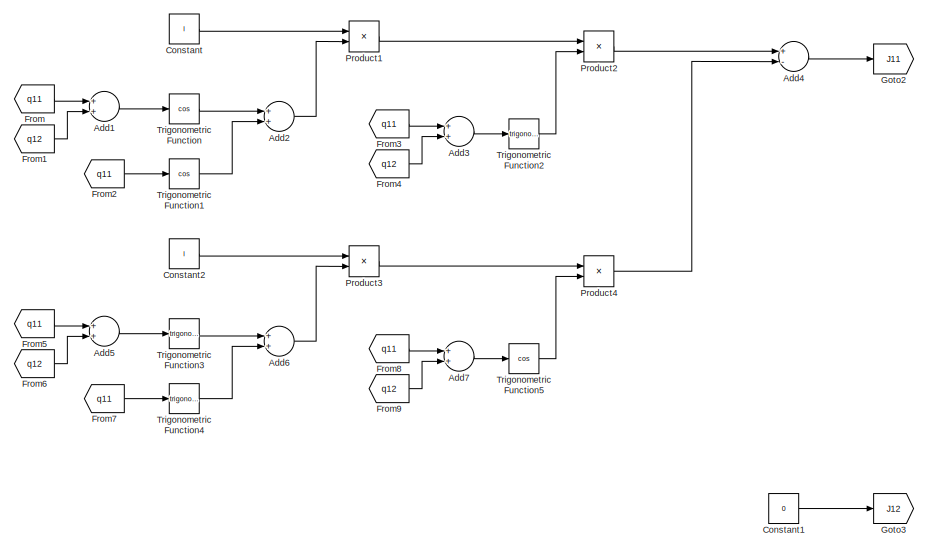
[diagram: Jacobi matrix/J2E matrix - part 1/4, top center region]
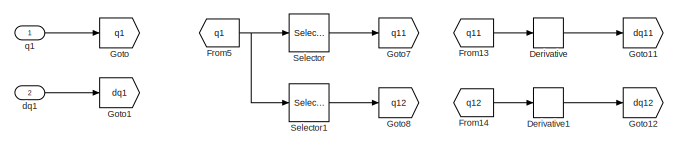
[diagram: Jacobi matrix/J2E matrix - part 2/4, top left region]
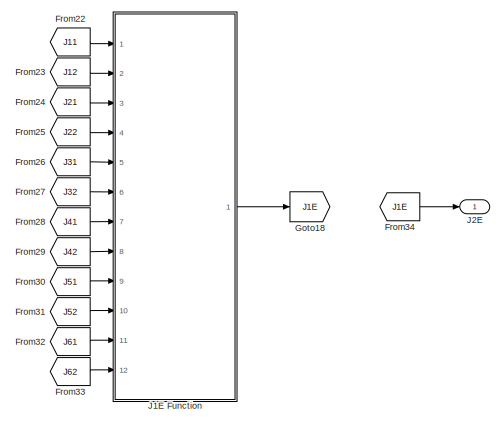
[diagram: Jacobi matrix/J2E matrix - part 3/4, top right region]
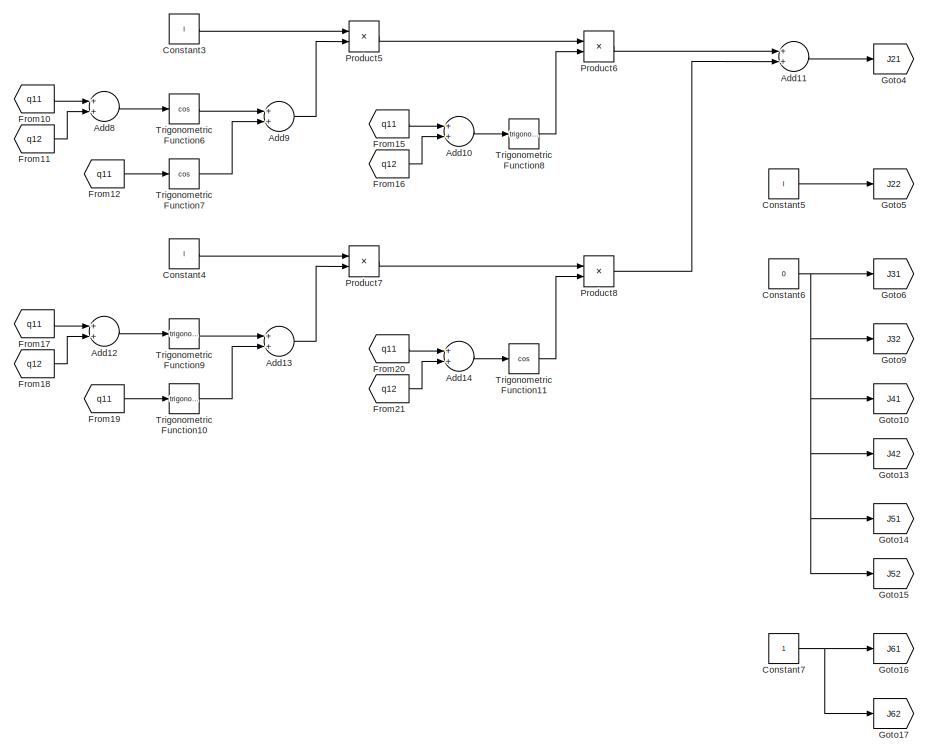
[diagram: Jacobi matrix/J2E matrix - part 4/4, bottom center region]
BLOCK [SubSystem] Jacobi matrix/J2E matrix
  Ports = [2, 1]
  RequestExecContextInheritance = off
  Variant = off
BLOCK [Sum] Jacobi matrix/J2E matrix/Add1
  InputSameDT = off
  OutDataTypeStr = Inherit: Inherit via internal rule
  Ports = [2, 1]
  SaturateOnIntegerOverflow = off
BLOCK [Sum] Jacobi matrix/J2E matrix/Add10
  InputSameDT = off
  OutDataTypeStr = Inherit: Inherit via internal rule
  Ports = [2, 1]
  SaturateOnIntegerOverflow = off
BLOCK [Sum] Jacobi matrix/J2E matrix/Add11
  InputSameDT = off
  OutDataTypeStr = Inherit: Inherit via internal rule
  Ports = [2, 1]
  SaturateOnIntegerOverflow = off
BLOCK [Sum] Jacobi matrix/J2E matrix/Add12
  InputSameDT = off
  OutDataTypeStr = Inherit: Inherit via internal rule
  Ports = [2, 1]
  SaturateOnIntegerOverflow = off
BLOCK [Sum] Jacobi matrix/J2E matrix/Add13
  InputSameDT = off
  OutDataTypeStr = Inherit: Inherit via internal rule
  Ports = [2, 1]
  SaturateOnIntegerOverflow = off
BLOCK [Sum] Jacobi matrix/J2E matrix/Add14
  InputSameDT = off
  OutDataTypeStr = Inherit: Inherit via internal rule
  Ports = [2, 1]
  SaturateOnIntegerOverflow = off
BLOCK [Sum] Jacobi matrix/J2E matrix/Add2
  InputSameDT = off
  OutDataTypeStr = Inherit: Inherit via internal rule
  Ports = [2, 1]
  SaturateOnIntegerOverflow = off
BLOCK [Sum] Jacobi matrix/J2E matrix/Add3
  InputSameDT = off
  OutDataTypeStr = Inherit: Inherit via internal rule
  Ports = [2, 1]
  SaturateOnIntegerOverflow = off
BLOCK [Sum] Jacobi matrix/J2E matrix/Add4
  InputSameDT = off
  Inputs = +-
  OutDataTypeStr = Inherit: Inherit via internal rule
  Ports = [2, 1]
  SaturateOnIntegerOverflow = off
BLOCK [Sum] Jacobi matrix/J2E matrix/Add5
  InputSameDT = off
  OutDataTypeStr = Inherit: Inherit via internal rule
  Ports = [2, 1]
  SaturateOnIntegerOverflow = off
BLOCK [Sum] Jacobi matrix/J2E matrix/Add6
  InputSameDT = off
  OutDataTypeStr = Inherit: Inherit via internal rule
  Ports = [2, 1]
  SaturateOnIntegerOverflow = off
BLOCK [Sum] Jacobi matrix/J2E matrix/Add7
  InputSameDT = off
  OutDataTypeStr = Inherit: Inherit via internal rule
  Ports = [2, 1]
  SaturateOnIntegerOverflow = off
BLOCK [Sum] Jacobi matrix/J2E matrix/Add8
  InputSameDT = off
  OutDataTypeStr = Inherit: Inherit via internal rule
  Ports = [2, 1]
  SaturateOnIntegerOverflow = off
BLOCK [Sum] Jacobi matrix/J2E matrix/Add9
  InputSameDT = off
  OutDataTypeStr = Inherit: Inherit via internal rule
  Ports = [2, 1]
  SaturateOnIntegerOverflow = off
BLOCK [Constant] Jacobi matrix/J2E matrix/Constant
  Value = l
BLOCK [Constant] Jacobi matrix/J2E matrix/Constant1
  Value = 0
BLOCK [Constant] Jacobi matrix/J2E matrix/Constant2
  Value = l
BLOCK [Constant] Jacobi matrix/J2E matrix/Constant3
  Value = l
BLOCK [Constant] Jacobi matrix/J2E matrix/Constant4
  Value = l
BLOCK [Constant] Jacobi matrix/J2E matrix/Constant5
  Value = l
BLOCK [Constant] Jacobi matrix/J2E matrix/Constant6
  Value = 0
BLOCK [Constant] Jacobi matrix/J2E matrix/Constant7
BLOCK [Derivative] Jacobi matrix/J2E matrix/Derivative
BLOCK [Derivative] Jacobi matrix/J2E matrix/Derivative1
BLOCK [From] Jacobi matrix/J2E matrix/From
  GotoTag = q11
BLOCK [From] Jacobi matrix/J2E matrix/From1
  GotoTag = q12
BLOCK [From] Jacobi matrix/J2E matrix/From10
  GotoTag = q11
BLOCK [From] Jacobi matrix/J2E matrix/From11
  GotoTag = q12
BLOCK [From] Jacobi matrix/J2E matrix/From12
  GotoTag = q11
BLOCK [From] Jacobi matrix/J2E matrix/From13
  GotoTag = q11
BLOCK [From] Jacobi matrix/J2E matrix/From14
  GotoTag = q12
BLOCK [From] Jacobi matrix/J2E matrix/From15
  GotoTag = q11
BLOCK [From] Jacobi matrix/J2E matrix/From16
  GotoTag = q12
BLOCK [From] Jacobi matrix/J2E matrix/From17
  GotoTag = q11
BLOCK [From] Jacobi matrix/J2E matrix/From18
  GotoTag = q12
BLOCK [From] Jacobi matrix/J2E matrix/From19
  GotoTag = q11
BLOCK [From] Jacobi matrix/J2E matrix/From2
  GotoTag = q11
BLOCK [From] Jacobi matrix/J2E matrix/From20
  GotoTag = q11
BLOCK [From] Jacobi matrix/J2E matrix/From21
  GotoTag = q12
BLOCK [From] Jacobi matrix/J2E matrix/From22
  GotoTag = J11
BLOCK [From] Jacobi matrix/J2E matrix/From23
  GotoTag = J12
BLOCK [From] Jacobi matrix/J2E matrix/From24
  GotoTag = J21
BLOCK [From] Jacobi matrix/J2E matrix/From25
  GotoTag = J22
BLOCK [From] Jacobi matrix/J2E matrix/From26
  GotoTag = J31
BLOCK [From] Jacobi matrix/J2E matrix/From27
  GotoTag = J32
BLOCK [From] Jacobi matrix/J2E matrix/From28
  GotoTag = J41
BLOCK [From] Jacobi matrix/J2E matrix/From29
  GotoTag = J42
BLOCK [From] Jacobi matrix/J2E matrix/From3
  GotoTag = q11
BLOCK [From] Jacobi matrix/J2E matrix/From30
  GotoTag = J51
BLOCK [From] Jacobi matrix/J2E matrix/From31
  GotoTag = J52
BLOCK [From] Jacobi matrix/J2E matrix/From32
  GotoTag = J61
BLOCK [From] Jacobi matrix/J2E matrix/From33
  GotoTag = J62
BLOCK [From] Jacobi matrix/J2E matrix/From34
  GotoTag = J1E
BLOCK [From] Jacobi matrix/J2E matrix/From4
  GotoTag = q12
BLOCK [From] Jacobi matrix/J2E matrix/From5
  GotoTag = q11
BLOCK [From] Jacobi matrix/J2E matrix/From5 
  GotoTag = q1
BLOCK [From] Jacobi matrix/J2E matrix/From6
  GotoTag = q12
BLOCK [From] Jacobi matrix/J2E matrix/From7
  GotoTag = q11
BLOCK [From] Jacobi matrix/J2E matrix/From8
  GotoTag = q11
BLOCK [From] Jacobi matrix/J2E matrix/From9
  GotoTag = q12
BLOCK [Goto] Jacobi matrix/J2E matrix/Goto
  GotoTag = q1
BLOCK [Goto] Jacobi matrix/J2E matrix/Goto1
  GotoTag = dq1
BLOCK [Goto] Jacobi matrix/J2E matrix/Goto10
  GotoTag = J41
BLOCK [Goto] Jacobi matrix/J2E matrix/Goto11
  GotoTag = dq11
BLOCK [Goto] Jacobi matrix/J2E matrix/Goto12
  GotoTag = dq12
BLOCK [Goto] Jacobi matrix/J2E matrix/Goto13
  GotoTag = J42
BLOCK [Goto] Jacobi matrix/J2E matrix/Goto14
  GotoTag = J51
BLOCK [Goto] Jacobi matrix/J2E matrix/Goto15
  GotoTag = J52
BLOCK [Goto] Jacobi matrix/J2E matrix/Goto16
  GotoTag = J61
BLOCK [Goto] Jacobi matrix/J2E matrix/Goto17
  GotoTag = J62
BLOCK [Goto] Jacobi matrix/J2E matrix/Goto18
  GotoTag = J1E
BLOCK [Goto] Jacobi matrix/J2E matrix/Goto2
  GotoTag = J11
BLOCK [Goto] Jacobi matrix/J2E matrix/Goto3
  GotoTag = J12
BLOCK [Goto] Jacobi matrix/J2E matrix/Goto4
  GotoTag = J21
BLOCK [Goto] Jacobi matrix/J2E matrix/Goto5
  GotoTag = J22
BLOCK [Goto] Jacobi matrix/J2E matrix/Goto6
  GotoTag = J31
BLOCK [Goto] Jacobi matrix/J2E matrix/Goto7
  GotoTag = q11
BLOCK [Goto] Jacobi matrix/J2E matrix/Goto8
  GotoTag = q12
BLOCK [Goto] Jacobi matrix/J2E matrix/Goto9
  GotoTag = J32
BLOCK [SubSystem] Jacobi matrix/J2E matrix/J1E Function
  ErrorFcn = Stateflow.Translate.translate
  PermitHierarchicalResolution = ExplicitOnly
  Ports = [12, 1]
  RequestExecContextInheritance = off
  SFBlockType = MATLAB Function
  TreatAsAtomicUnit = on
  Variant = off
BLOCK [Demux] Jacobi matrix/J2E matrix/J1E Function/ Demux 
  Outputs = 1
  Ports = [1, 1]
BLOCK [S-Function] Jacobi matrix/J2E matrix/J1E Function/ SFunction 
  EnableBusSupport = on
  FunctionName = sf_sfun
  PortCounts = [12 2]
  Ports = [12, 2]
  SFunctionDeploymentMode = off
  Tag = Stateflow S-Function common_3 9
BLOCK [Terminator] Jacobi matrix/J2E matrix/J1E Function/ Terminator 
BLOCK [Outport] Jacobi matrix/J2E matrix/J1E Function/J
  IconDisplay = Port number
BLOCK [Inport] Jacobi matrix/J2E matrix/J1E Function/J11
  IconDisplay = Port number
BLOCK [Inport] Jacobi matrix/J2E matrix/J1E Function/J12
  IconDisplay = Port number
  Port = 2
BLOCK [Inport] Jacobi matrix/J2E matrix/J1E Function/J21
  IconDisplay = Port number
  Port = 3
BLOCK [Inport] Jacobi matrix/J2E matrix/J1E Function/J22
  IconDisplay = Port number
  Port = 4
BLOCK [Inport] Jacobi matrix/J2E matrix/J1E Function/J31
  IconDisplay = Port number
  Port = 5
BLOCK [Inport] Jacobi matrix/J2E matrix/J1E Function/J32
  IconDisplay = Port number
  Port = 6
BLOCK [Inport] Jacobi matrix/J2E matrix/J1E Function/J41
  IconDisplay = Port number
  Port = 7
BLOCK [Inport] Jacobi matrix/J2E matrix/J1E Function/J42
  IconDisplay = Port number
  Port = 8
BLOCK [Inport] Jacobi matrix/J2E matrix/J1E Function/J51
  IconDisplay = Port number
  Port = 9
BLOCK [Inport] Jacobi matrix/J2E matrix/J1E Function/J52
  IconDisplay = Port number
  Port = 10
BLOCK [Inport] Jacobi matrix/J2E matrix/J1E Function/J61
  IconDisplay = Port number
  Port = 11
BLOCK [Inport] Jacobi matrix/J2E matrix/J1E Function/J62
  IconDisplay = Port number
  Port = 12
BLOCK [Outport] Jacobi matrix/J2E matrix/J2E
  IconDisplay = Port number
BLOCK [Product] Jacobi matrix/J2E matrix/Product1
  InputSameDT = off
  OutDataTypeStr = Inherit: Inherit via internal rule
  Ports = [2, 1]
  RndMeth = Floor
  SaturateOnIntegerOverflow = off
BLOCK [Product] Jacobi matrix/J2E matrix/Product2
  InputSameDT = off
  OutDataTypeStr = Inherit: Inherit via internal rule
  Ports = [2, 1]
  RndMeth = Floor
  SaturateOnIntegerOverflow = off
BLOCK [Product] Jacobi matrix/J2E matrix/Product3
  InputSameDT = off
  OutDataTypeStr = Inherit: Inherit via internal rule
  Ports = [2, 1]
  RndMeth = Floor
  SaturateOnIntegerOverflow = off
BLOCK [Product] Jacobi matrix/J2E matrix/Product4
  InputSameDT = off
  OutDataTypeStr = Inherit: Inherit via internal rule
  Ports = [2, 1]
  RndMeth = Floor
  SaturateOnIntegerOverflow = off
BLOCK [Product] Jacobi matrix/J2E matrix/Product5
  InputSameDT = off
  OutDataTypeStr = Inherit: Inherit via internal rule
  Ports = [2, 1]
  RndMeth = Floor
  SaturateOnIntegerOverflow = off
BLOCK [Product] Jacobi matrix/J2E matrix/Product6
  InputSameDT = off
  OutDataTypeStr = Inherit: Inherit via internal rule
  Ports = [2, 1]
  RndMeth = Floor
  SaturateOnIntegerOverflow = off
BLOCK [Product] Jacobi matrix/J2E matrix/Product7
  InputSameDT = off
  OutDataTypeStr = Inherit: Inherit via internal rule
  Ports = [2, 1]
  RndMeth = Floor
  SaturateOnIntegerOverflow = off
BLOCK [Product] Jacobi matrix/J2E matrix/Product8
  InputSameDT = off
  OutDataTypeStr = Inherit: Inherit via internal rule
  Ports = [2, 1]
  RndMeth = Floor
  SaturateOnIntegerOverflow = off
BLOCK [Selector] Jacobi matrix/J2E matrix/Selector
  IndexOptions = Index vector (dialog)
  Indices = [1]
  InputPortWidth = 2
  OutputSizes = 1
  Ports = [1, 1]
BLOCK [Selector] Jacobi matrix/J2E matrix/Selector1
  IndexOptions = Index vector (dialog)
  Indices = [2]
  InputPortWidth = 2
  OutputSizes = 1
  Ports = [1, 1]
BLOCK [Trigonometry] Jacobi matrix/J2E matrix/Trigonometric Function
  Operator = cos
  Ports = [1, 1]
BLOCK [Trigonometry] Jacobi matrix/J2E matrix/Trigonometric Function1
  Operator = cos
  Ports = [1, 1]
BLOCK [Trigonometry] Jacobi matrix/J2E matrix/Trigonometric Function10
  Ports = [1, 1]
BLOCK [Trigonometry] Jacobi matrix/J2E matrix/Trigonometric Function11
  Operator = cos
  Ports = [1, 1]
BLOCK [Trigonometry] Jacobi matrix/J2E matrix/Trigonometric Function2
  Ports = [1, 1]
BLOCK [Trigonometry] Jacobi matrix/J2E matrix/Trigonometric Function3
  Ports = [1, 1]
BLOCK [Trigonometry] Jacobi matrix/J2E matrix/Trigonometric Function4
  Ports = [1, 1]
BLOCK [Trigonometry] Jacobi matrix/J2E matrix/Trigonometric Function5
  Operator = cos
  Ports = [1, 1]
BLOCK [Trigonometry] Jacobi matrix/J2E matrix/Trigonometric Function6
  Operator = cos
  Ports = [1, 1]
BLOCK [Trigonometry] Jacobi matrix/J2E matrix/Trigonometric Function7
  Operator = cos
  Ports = [1, 1]
BLOCK [Trigonometry] Jacobi matrix/J2E matrix/Trigonometric Function8
  Ports = [1, 1]
BLOCK [Trigonometry] Jacobi matrix/J2E matrix/Trigonometric Function9
  Ports = [1, 1]
BLOCK [Inport] Jacobi matrix/J2E matrix/dq1
  IconDisplay = Port number
  Port = 2
BLOCK [Inport] Jacobi matrix/J2E matrix/q1
  IconDisplay = Port number
BLOCK [SubSystem] Jacobi matrix/diag Function
  ErrorFcn = Stateflow.Translate.translate
  PermitHierarchicalResolution = ExplicitOnly
  Ports = [2, 1]
  RequestExecContextInheritance = off
  SFBlockType = MATLAB Function
  TreatAsAtomicUnit = on
  Variant = off
BLOCK [Demux] Jacobi matrix/diag Function/ Demux 
  Outputs = 1
  Ports = [1, 1]
BLOCK [S-Function] Jacobi matrix/diag Function/ SFunction 
  EnableBusSupport = on
  FunctionName = sf_sfun
  PortCounts = [2 2]
  Ports = [2, 2]
  SFunctionDeploymentMode = off
  Tag = Stateflow S-Function common_3 1
BLOCK [Terminator] Jacobi matrix/diag Function/ Terminator 
BLOCK [Inport] Jacobi matrix/diag Function/u1
  IconDisplay = Port number
BLOCK [Inport] Jacobi matrix/diag Function/u2
  IconDisplay = Port number
  Port = 2
BLOCK [Outport] Jacobi matrix/diag Function/y
  IconDisplay = Port number
BLOCK [SubSystem] Observe
  Ports = []
  RequestExecContextInheritance = off
  Variant = off
BLOCK [From] Observe/From1
  GotoTag = G1
  TagVisibility = global
BLOCK [From] Observe/From10
  GotoTag = C1
  TagVisibility = global
BLOCK [From] Observe/From11
  GotoTag = q21
  TagVisibility = global
BLOCK [From] Observe/From12
  GotoTag = q22
  TagVisibility = global
BLOCK [From] Observe/From13
  GotoTag = dq11
  TagVisibility = global
BLOCK [From] Observe/From14
  GotoTag = dq12
  TagVisibility = global
BLOCK [From] Observe/From15
  GotoTag = G2
  TagVisibility = global
BLOCK [From] Observe/From16
  GotoTag = C2
  TagVisibility = global
BLOCK [From] Observe/From17
  GotoTag = F2
  TagVisibility = global
BLOCK [From] Observe/From18
  GotoTag = M2
  TagVisibility = global
BLOCK [From] Observe/From19
  GotoTag = q
  TagVisibility = global
BLOCK [From] Observe/From2
  GotoTag = q11
  TagVisibility = global
BLOCK [From] Observe/From20
  GotoTag = dq
  TagVisibility = global
BLOCK [From] Observe/From3
  GotoTag = qd
  TagVisibility = global
BLOCK [From] Observe/From4
  GotoTag = dq21
  TagVisibility = global
BLOCK [From] Observe/From5
  GotoTag = q12
  TagVisibility = global
BLOCK [From] Observe/From6
  GotoTag = dq22
  TagVisibility = global
BLOCK [From] Observe/From7
  GotoTag = dqd
  TagVisibility = global
BLOCK [From] Observe/From8
  GotoTag = F1
  TagVisibility = global
BLOCK [From] Observe/From9
  GotoTag = M1
  TagVisibility = global
BLOCK [Scope] Observe/Scope
  NumInputPorts = 4
  Ports = [4]
  ScopeSpecificationString = Simulink.scopes.TimeScopeBlockCfg('CurrentConfiguration', extmgr.ConfigurationSet(extmgr.Configuration('Core','General UI',true),extmgr.Configuration('Core','Source UI',true),extmgr.Configuration('Sources','WiredSimulink',true,'DataLoggingVariableName','ScopeData1'),extmgr.Configuration('Visuals','Time Domain',true,'SerializedDisplays',{struct('MinYLimReal','-3.52258','MaxYLimReal','1.14566','YLab...<+3438ch>
BLOCK [Scope] Observe/Scope1
  NumInputPorts = 4
  Ports = [4]
  ScopeSpecificationString = Simulink.scopes.TimeScopeBlockCfg('CurrentConfiguration', extmgr.ConfigurationSet(extmgr.Configuration('Core','General UI',true),extmgr.Configuration('Core','Source UI',true),extmgr.Configuration('Sources','WiredSimulink',true),extmgr.Configuration('Visuals','Time Domain',true,'SerializedDisplays',{struct('MinYLimReal','-8.70401','MaxYLimReal','8.2517','YLabelReal','','MinYLimMag','0.00000','MaxYL...<+3404ch>
BLOCK [Scope] Observe/Scope2
  NumInputPorts = 4
  Ports = [4]
  ScopeSpecificationString = Simulink.scopes.TimeScopeBlockCfg('CurrentConfiguration', extmgr.ConfigurationSet(extmgr.Configuration('Core','General UI',true),extmgr.Configuration('Core','Source UI',true),extmgr.Configuration('Sources','WiredSimulink',true,'DataLoggingVariableName','ScopeData2'),extmgr.Configuration('Visuals','Time Domain',true,'SerializedDisplays',{struct('MinYLimReal','-0.79875','MaxYLimReal','6.08875','YLab...<+3480ch>
BLOCK [Scope] Observe/Scope3
  NumInputPorts = 4
  Ports = [4]
  ScopeSpecificationString = Simulink.scopes.TimeScopeBlockCfg('CurrentConfiguration', extmgr.ConfigurationSet(extmgr.Configuration('Core','General UI',true),extmgr.Configuration('Core','Source UI',true),extmgr.Configuration('Sources','WiredSimulink',true,'DataLoggingVariableName','ScopeData3'),extmgr.Configuration('Visuals','Time Domain',true,'SerializedDisplays',{struct('MinYLimReal','-0.79875','MaxYLimReal','6.08875','YLab...<+3480ch>
BLOCK [Scope] Observe/Scope4
  NumInputPorts = 4
  Ports = [4]
  ScopeSpecificationString = Simulink.scopes.TimeScopeBlockCfg('CurrentConfiguration', extmgr.ConfigurationSet(extmgr.Configuration('Core','General UI',true),extmgr.Configuration('Core','Source UI',true),extmgr.Configuration('Sources','WiredSimulink',true,'DataLoggingVariableName','ScopeData4'),extmgr.Configuration('Visuals','Time Domain',true,'SerializedDisplays',{struct('MinYLimReal','1.625','MaxYLimReal','5.375','YLabelRea...<+3608ch>
BLOCK [SubSystem] controller
  Ports = []
  RequestExecContextInheritance = off
  Variant = off
BLOCK [Sum] controller/Add
  InputSameDT = off
  OutDataTypeStr = Inherit: Inherit via internal rule
  Ports = [2, 1]
  SaturateOnIntegerOverflow = off
BLOCK [Constant] controller/Constant
  Value = kp
BLOCK [Constant] controller/Constant1
  Value = ki
BLOCK [From] controller/From
  GotoTag = z1
  TagVisibility = global
BLOCK [From] controller/From1
  Commented = on
  GotoTag = tau
  TagVisibility = global
BLOCK [From] controller/From2
  GotoTag = q1d
  TagVisibility = global
BLOCK [From] controller/From3
  GotoTag = tau1
  TagVisibility = global
BLOCK [From] controller/From4
  GotoTag = q1
  TagVisibility = global
BLOCK [From] controller/From5
  GotoTag = z1
  TagVisibility = global
BLOCK [From] controller/From7
  GotoTag = tau2
BLOCK [Goto] controller/Goto1
  Commented = on
  GotoTag = tau1
  TagVisibility = global
BLOCK [Goto] controller/Goto2
  Commented = on
  GotoTag = tau2
  TagVisibility = global
BLOCK [Goto] controller/Goto3
  GotoTag = tau21
  TagVisibility = global
BLOCK [Goto] controller/Goto4
  GotoTag = tau22
  TagVisibility = global
BLOCK [Goto] controller/Goto5
  GotoTag = tau11
  TagVisibility = global
BLOCK [Goto] controller/Goto6
  GotoTag = tau1
  TagVisibility = global
BLOCK [Goto] controller/Goto7
  GotoTag = tau12
  TagVisibility = global
BLOCK [Goto] controller/Goto8
  GotoTag = z1
  TagVisibility = global
BLOCK [Integrator] controller/Integrator
  Ports = [1, 1]
BLOCK [SubSystem] controller/MATLAB Function
  Commented = on
  ErrorFcn = Stateflow.Translate.translate
  PermitHierarchicalResolution = ExplicitOnly
  Ports = [1, 2]
  RequestExecContextInheritance = off
  SFBlockType = MATLAB Function
  TreatAsAtomicUnit = on
  Variant = off
BLOCK [Demux] controller/MATLAB Function/ Demux 
  Outputs = 1
  Ports = [1, 1]
BLOCK [S-Function] controller/MATLAB Function/ SFunction 
  EnableBusSupport = on
  FunctionName = sf_sfun
  PortCounts = [1 3]
  Ports = [1, 3]
  SFunctionDeploymentMode = off
  Tag = Stateflow S-Function common_3 5
BLOCK [Terminator] controller/MATLAB Function/ Terminator 
BLOCK [Inport] controller/MATLAB Function/tau
  IconDisplay = Port number
BLOCK [Outport] controller/MATLAB Function/tau1
  IconDisplay = Port number
BLOCK [Outport] controller/MATLAB Function/tau2
  IconDisplay = Port number
  Port = 2
BLOCK [Product] controller/Product
  InputSameDT = off
  OutDataTypeStr = Inherit: Inherit via internal rule
  Ports = [2, 1]
  RndMeth = Floor
  SaturateOnIntegerOverflow = off
BLOCK [Product] controller/Product1
  InputSameDT = off
  OutDataTypeStr = Inherit: Inherit via internal rule
  Ports = [2, 1]
  RndMeth = Floor
  SaturateOnIntegerOverflow = off
BLOCK [Selector] controller/Selector1
  IndexOptions = Index vector (dialog)
  Indices = [1]
  InputPortWidth = 2
  OutputSizes = 1
  Ports = [1, 1]
BLOCK [Selector] controller/Selector10
  IndexOptions = Index vector (dialog)
  Indices = [2]
  InputPortWidth = 2
  OutputSizes = 1
  Ports = [1, 1]
BLOCK [Selector] controller/Selector2
  IndexOptions = Index vector (dialog)
  Indices = [1]
  InputPortWidth = 2
  OutputSizes = 1
  Ports = [1, 1]
BLOCK [Selector] controller/Selector3
  IndexOptions = Index vector (dialog)
  Indices = [2]
  InputPortWidth = 2
  OutputSizes = 1
  Ports = [1, 1]
BLOCK [Sum] controller/Subtract1
  InputSameDT = off
  Inputs = +-
  OutDataTypeStr = Inherit: Inherit via internal rule
  Ports = [2, 1]
  SaturateOnIntegerOverflow = off
BLOCK [SubSystem] cooperate
  Ports = []
  RequestExecContextInheritance = off
  Variant = off
BLOCK [From] cooperate/From1
  GotoTag = M2
  TagVisibility = global
BLOCK [From] cooperate/From10
  GotoTag = q2
  TagVisibility = global
BLOCK [From] cooperate/From11
  GotoTag = dq2
  TagVisibility = global
BLOCK [From] cooperate/From12
  GotoTag = dq1
  TagVisibility = global
BLOCK [From] cooperate/From2
  GotoTag = C1
  TagVisibility = global
BLOCK [From] cooperate/From3
  GotoTag = M1
  TagVisibility = global
BLOCK [From] cooperate/From4
  GotoTag = C2
  TagVisibility = global
BLOCK [From] cooperate/From5
  GotoTag = G1
  TagVisibility = global
BLOCK [From] cooperate/From6
  GotoTag = G2
  TagVisibility = global
BLOCK [From] cooperate/From7
  GotoTag = F1
  TagVisibility = global
BLOCK [From] cooperate/From8
  GotoTag = F2
  TagVisibility = global
BLOCK [From] cooperate/From9
  GotoTag = q1
  TagVisibility = global
BLOCK [Goto] cooperate/Goto
  GotoTag = M
  TagVisibility = global
BLOCK [Goto] cooperate/Goto1
  GotoTag = C
  TagVisibility = global
BLOCK [Goto] cooperate/Goto2
  GotoTag = G
  TagVisibility = global
BLOCK [Goto] cooperate/Goto3
  GotoTag = F
  TagVisibility = global
BLOCK [Goto] cooperate/Goto4
  GotoTag = q
  TagVisibility = global
BLOCK [Goto] cooperate/Goto5
  GotoTag = dq
  TagVisibility = global
BLOCK [SubSystem] cooperate/MATLAB Function
  ErrorFcn = Stateflow.Translate.translate
  PermitHierarchicalResolution = ExplicitOnly
  Ports = [8, 4]
  RequestExecContextInheritance = off
  SFBlockType = MATLAB Function
  TreatAsAtomicUnit = on
  Variant = off
BLOCK [Demux] cooperate/MATLAB Function/ Demux 
  Outputs = 1
  Ports = [1, 1]
BLOCK [S-Function] cooperate/MATLAB Function/ SFunction 
  EnableBusSupport = on
  FunctionName = sf_sfun
  PortCounts = [8 5]
  Ports = [8, 5]
  SFunctionDeploymentMode = off
  Tag = Stateflow S-Function common_3 20
BLOCK [Terminator] cooperate/MATLAB Function/ Terminator 
BLOCK [Outport] cooperate/MATLAB Function/C
  IconDisplay = Port number
  Port = 2
BLOCK [Inport] cooperate/MATLAB Function/C1
  IconDisplay = Port number
  Port = 3
BLOCK [Inport] cooperate/MATLAB Function/C2
  IconDisplay = Port number
  Port = 4
BLOCK [Outport] cooperate/MATLAB Function/F
  IconDisplay = Port number
  Port = 4
BLOCK [Inport] cooperate/MATLAB Function/F1
  IconDisplay = Port number
  Port = 7
BLOCK [Inport] cooperate/MATLAB Function/F2
  IconDisplay = Port number
  Port = 8
BLOCK [Outport] cooperate/MATLAB Function/G
  IconDisplay = Port number
  Port = 3
BLOCK [Inport] cooperate/MATLAB Function/G1
  IconDisplay = Port number
  Port = 5
BLOCK [Inport] cooperate/MATLAB Function/G2
  IconDisplay = Port number
  Port = 6
BLOCK [Outport] cooperate/MATLAB Function/M
  IconDisplay = Port number
BLOCK [Inport] cooperate/MATLAB Function/M1
  IconDisplay = Port number
BLOCK [Inport] cooperate/MATLAB Function/M2
  IconDisplay = Port number
  Port = 2
BLOCK [Concatenate] cooperate/Matrix Concatenate
  Mode = Multidimensional array
  Ports = [2, 1]
BLOCK [Concatenate] cooperate/Matrix Concatenate1
  Mode = Multidimensional array
  Ports = [2, 1]
BLOCK [SubSystem] joint desired
  Ports = []
  RequestExecContextInheritance = off
  Variant = off
BLOCK [Clock] joint desired/Clock
BLOCK [Constant] joint desired/Constant
  Value = 2
BLOCK [Constant] joint desired/Constant1
  Value = 3
BLOCK [Constant] joint desired/Constant2
  Value = 4
BLOCK [Constant] joint desired/Constant3
  Value = 5
BLOCK [Derivative] joint desired/Derivative
BLOCK [Derivative] joint desired/Derivative1
BLOCK [Derivative] joint desired/Derivative2
BLOCK [Derivative] joint desired/Derivative3
BLOCK [Fcn] joint desired/Fcn
  Expr = sin(u)
BLOCK [From] joint desired/From
  GotoTag = q21d
  TagVisibility = global
BLOCK [From] joint desired/From1
  GotoTag = q22d
  TagVisibility = global
BLOCK [From] joint desired/From10
  GotoTag = dq11d
  TagVisibility = global
BLOCK [From] joint desired/From11
  GotoTag = dq12d
  TagVisibility = global
BLOCK [From] joint desired/From12
  GotoTag = q11d
  TagVisibility = global
BLOCK [From] joint desired/From13
  GotoTag = q12d
  TagVisibility = global
BLOCK [From] joint desired/From14
  GotoTag = dq1d
  TagVisibility = global
BLOCK [From] joint desired/From15
  GotoTag = dq2d
  TagVisibility = global
BLOCK [From] joint desired/From2
  GotoTag = q1d
  TagVisibility = global
BLOCK [From] joint desired/From3
  GotoTag = q2d
  TagVisibility = global
BLOCK [From] joint desired/From4
  GotoTag = q11d
  TagVisibility = global
BLOCK [From] joint desired/From5
  GotoTag = q12d
  TagVisibility = global
BLOCK [From] joint desired/From6
  GotoTag = q21d
  TagVisibility = global
BLOCK [From] joint desired/From7
  GotoTag = q22d
  TagVisibility = global
BLOCK [From] joint desired/From8
  GotoTag = dq21d
  TagVisibility = global
BLOCK [From] joint desired/From9
  GotoTag = dq22d
  TagVisibility = global
BLOCK [Goto] joint desired/Goto1
  GotoTag = qd
  TagVisibility = global
BLOCK [Goto] joint desired/Goto10
  GotoTag = dq1d
  TagVisibility = global
BLOCK [Goto] joint desired/Goto11
  GotoTag = dq2d
  TagVisibility = global
BLOCK [Goto] joint desired/Goto16
  GotoTag = q11d
  TagVisibility = global
BLOCK [Goto] joint desired/Goto17
  GotoTag = q12d
  TagVisibility = global
BLOCK [Goto] joint desired/Goto18
  GotoTag = q21d
  TagVisibility = global
BLOCK [Goto] joint desired/Goto19
  GotoTag = q22d
  TagVisibility = global
BLOCK [Goto] joint desired/Goto2
  GotoTag = dq11d
  TagVisibility = global
BLOCK [Goto] joint desired/Goto3
  GotoTag = dq12d
  TagVisibility = global
BLOCK [Goto] joint desired/Goto4
  GotoTag = dq21d
  TagVisibility = global
BLOCK [Goto] joint desired/Goto5
  GotoTag = dq22d
  TagVisibility = global
BLOCK [Goto] joint desired/Goto7
  GotoTag = q1d
  TagVisibility = global
BLOCK [Goto] joint desired/Goto8
  GotoTag = q2d
  TagVisibility = global
BLOCK [Goto] joint desired/Goto9
  GotoTag = dqd
  TagVisibility = global
BLOCK [Concatenate] joint desired/Matrix Concatenate1
  Mode = Multidimensional array
  Ports = [2, 1]
BLOCK [Concatenate] joint desired/Matrix Concatenate2
  Mode = Multidimensional array
  Ports = [2, 1]
BLOCK [Concatenate] joint desired/Matrix Concatenate3
  Mode = Multidimensional array
  Ports = [2, 1]
BLOCK [Concatenate] joint desired/Matrix Concatenate4
  Mode = Multidimensional array
  Ports = [2, 1]
BLOCK [Concatenate] joint desired/Matrix Concatenate5
  Mode = Multidimensional array
  Ports = [2, 1]
BLOCK [Concatenate] joint desired/Matrix Concatenate6
  Mode = Multidimensional array
  Ports = [2, 1]
LINE 1th robot/C matrix/Add:1 -> 1th robot/C matrix/Product3:2
LINE 1th robot/C matrix/C Function:1 -> 1th robot/C matrix/Goto1:1
LINE 1th robot/C matrix/Constant1:1 -> 1th robot/C matrix/Product3:1
LINE 1th robot/C matrix/Constant2:1 -> 1th robot/C matrix/Product5:1
LINE 1th robot/C matrix/Constant3:1 -> 1th robot/C matrix/Goto6:1
LINE 1th robot/C matrix/Constant:1 -> 1th robot/C matrix/Product1:1
LINE 1th robot/C matrix/From1:1 -> 1th robot/C matrix/Product1:2
LINE 1th robot/C matrix/From22:1 -> 1th robot/C matrix/C Function:2
LINE 1th robot/C matrix/From23:1 -> 1th robot/C matrix/C Function:3
LINE 1th robot/C matrix/From24:1 -> 1th robot/C matrix/C Function:4
LINE 1th robot/C matrix/From25:1 -> 1th robot/C matrix/C Function:1
LINE 1th robot/C matrix/From2:1 -> 1th robot/C matrix/Trigonometric Function2:1
LINE 1th robot/C matrix/From3:1 -> 1th robot/C matrix/Add:1
LINE 1th robot/C matrix/From4:1 -> 1th robot/C matrix/Add:2
LINE 1th robot/C matrix/From5:1 -> 1th robot/C matrix/Trigonometric Function1:1
LINE 1th robot/C matrix/From6:1 -> 1th robot/C matrix/Product5:2
LINE 1th robot/C matrix/From7:1 -> 1th robot/C matrix/Tri gonometric Function3:1
LINE 1th robot/C matrix/Product1:1 -> 1th robot/C matrix/Product2:1
LINE 1th robot/C matrix/Product2:1 -> 1th robot/C matrix/Goto3:1
LINE 1th robot/C matrix/Product3:1 -> 1th robot/C matrix/Product4:1
LINE 1th robot/C matrix/Product4:1 -> 1th robot/C matrix/Goto4:1
LINE 1th robot/C matrix/Product5:1 -> 1th robot/C matrix/Product6:1
LINE 1th robot/C matrix/Product6:1 -> 1th robot/C matrix/Goto5:1
LINE 1th robot/C matrix/Tri gonometric Function3:1 -> 1th robot/C matrix/Product6:2
LINE 1th robot/C matrix/Trigonometric Function1:1 -> 1th robot/C matrix/Product4:2
LINE 1th robot/C matrix/Trigonometric Function2:1 -> 1th robot/C matrix/Product2:2
LINE 1th robot/Derivative1 :1 -> 1th robot/Goto12:1
LINE 1th robot/Derivative:1 -> 1th robot/Goto11:1
LINE 1th robot/Divide:1 -> 1th robot/Product1:1
LINE 1th robot/F matrix/Constant1:1 -> 1th robot/F matrix/Product1:1
LINE 1th robot/F matrix/Constant:1 -> 1th robot/F matrix/Product:1
LINE 1th robot/F matrix/F Function2:1 -> 1th robot/F matrix/Goto23:1
LINE 1th robot/F matrix/From19:1 -> 1th robot/F matrix/F Function2:1
LINE 1th robot/F matrix/From1:1 -> 1th robot/F matrix/Sign:1
LINE 1th robot/F matrix/From2:1 -> 1th robot/F matrix/Sign1:1
LINE 1th robot/F matrix/From39:1 -> 1th robot/F matrix/F Function2:2
LINE 1th robot/F matrix/Product1:1 -> 1th robot/F matrix/Goto3:1
LINE 1th robot/F matrix/Product:1 -> 1th robot/F matrix/Goto2:1
LINE 1th robot/F matrix/Sign1:1 -> 1th robot/F matrix/Product1:2
LINE 1th robot/F matrix/Sign:1 -> 1th robot/F matrix/Product:2
LINE 1th robot/Fro m20:1 -> 1th robot/Subtract3:2
LINE 1th robot/From13:1 -> 1th robot/Derivative:1
LINE 1th robot/From14:1 -> 1th robot/Derivative1 :1
LINE 1th robot/From18:1 -> 1th robot/Subtract:1
LINE 1th robot/From19:1 -> 1th robot/Subtract2:2
LINE 1th robot/From1:1 -> 1th robot/Product:1
LINE 1th robot/From2:1 -> 1th robot/Divide:1
LINE 1th robot/From3:1 -> 1th robot/Integrator1:1
LINE 1th robot/From4:1 -> 1th robot/Product:2
NET 1th robot/From5 :1 -> 1th robot/Selector1:1, 1th robot/Selector:1
LINE 1th robot/G matrix/Constant1:1 -> 1th robot/G matrix/Product3:1
LINE 1th robot/G matrix/Constant2:1 -> 1th robot/G matrix/Product2:1
LINE 1th robot/G matrix/Constant:1 -> 1th robot/G matrix/Product1:1
LINE 1th robot/G matrix/From10:1 -> 1th robot/G matrix/G Function1:2
LINE 1th robot/G matrix/From12:1 -> 1th robot/G matrix/G Function1:1
LINE 1th robot/G matrix/From1:1 -> 1th robot/G matrix/Subtract1:1
LINE 1th robot/G matrix/From2:1 -> 1th robot/G matrix/Subtract5:1
LINE 1th robot/G matrix/From3:1 -> 1th robot/G matrix/Subtract5:2
LINE 1th robot/G matrix/From4:1 -> 1th robot/G matrix/Subtract1:2
LINE 1th robot/G matrix/From:1 -> 1th robot/G matrix/Trigonometric Function2:1
LINE 1th robot/G matrix/G Function1:1 -> 1th robot/G matrix/Goto3:1
LINE 1th robot/G matrix/Product1:1 -> 1th robot/G matrix/Subtract4:1
LINE 1th robot/G matrix/Product2:1 -> 1th robot/G matrix/Subtract4:2
LINE 1th robot/G matrix/Product3:1 -> 1th robot/G matrix/Goto1:1
LINE 1th robot/G matrix/Subtract1:1 -> 1th robot/G matrix/Trigonometric Function1:1
LINE 1th robot/G matrix/Subtract4:1 -> 1th robot/G matrix/Goto2:1
LINE 1th robot/G matrix/Subtract5:1 -> 1th robot/G matrix/Trigonometric Function3:1
LINE 1th robot/G matrix/Trigonometric Function1:1 -> 1th robot/G matrix/Product3:2
LINE 1th robot/G matrix/Trigonometric Function2:1 -> 1th robot/G matrix/Product1:2
LINE 1th robot/G matrix/Trigonometric Function3:1 -> 1th robot/G matrix/Product2:2
LINE 1th robot/Integrator1:1 -> 1th robot/Goto5:1
LINE 1th robot/Integrator:1 -> 1th robot/Goto4:1
LINE 1th robot/M matrix/Constant1:1 -> 1th robot/M matrix/Product1:1
LINE 1th robot/M matrix/Constant2:1 -> 1th robot/M matrix/Subtract1:1
LINE 1th robot/M matrix/Constant3:1 -> 1th robot/M matrix/Subtract2:1
LINE 1th robot/M matrix/Constant4:1 -> 1th robot/M matrix/Product2:1
LINE 1th robot/M matrix/Constant5:1 -> 1th robot/M matrix/Goto4:1
LINE 1th robot/M matrix/From1:1 -> 1th robot/M matrix/Trigonometric Function1:1
LINE 1th robot/M matrix/From32:1 -> 1th robot/M matrix/M Function1:1
LINE 1th robot/M matrix/From33:1 -> 1th robot/M matrix/M Function1:2
LINE 1th robot/M matrix/From34:1 -> 1th robot/M matrix/M Function1:3
LINE 1th robot/M matrix/From35:1 -> 1th robot/M matrix/M Function1:4
LINE 1th robot/M matrix/From5:1 -> 1th robot/M matrix/Trigonometric Function8:1
LINE 1th robot/M matrix/M Function1:1 -> 1th robot/M matrix/Goto17:1
LINE 1th robot/M matrix/Product1:1 -> 1th robot/M matrix/Subtract1:2
LINE 1th robot/M matrix/Product2:1 -> 1th robot/M matrix/Subtract2:2
LINE 1th robot/M matrix/Subtract1:1 -> 1th robot/M matrix/Goto1:1
NET 1th robot/M matrix/Subtract2:1 -> 1th robot/M matrix/Goto2:1, 1th robot/M matrix/Goto3:1
LINE 1th robot/M matrix/Trigonometric Function1:1 -> 1th robot/M matrix/Product2:2
LINE 1th robot/M matrix/Trigonometric Function8:1 -> 1th robot/M matrix/Product1:2
LINE 1th robot/Product1:1 -> 1th robot/Integrator:1
LINE 1th robot/Product:1 -> 1th robot/Subtract:2
LINE 1th robot/Selector1:1 -> 1th robot/Goto6:1
LINE 1th robot/Selector:1 -> 1th robot/Goto1:1
LINE 1th robot/Subtract2:1 -> 1th robot/Subtract3:1
LINE 1th robot/Subtract3:1 -> 1th robot/Product1:2
LINE 1th robot/Subtract:1 -> 1th robot/Subtract2:1
LINE 2th robot/C matrix/Add:1 -> 2th robot/C matrix/Product3:2
LINE 2th robot/C matrix/C Function:1 -> 2th robot/C matrix/Goto1:1
LINE 2th robot/C matrix/Constant1:1 -> 2th robot/C matrix/Product3:1
LINE 2th robot/C matrix/Constant2:1 -> 2th robot/C matrix/Product5:1
LINE 2th robot/C matrix/Constant3:1 -> 2th robot/C matrix/Goto6:1
LINE 2th robot/C matrix/Constant:1 -> 2th robot/C matrix/Product1:1
LINE 2th robot/C matrix/From1:1 -> 2th robot/C matrix/Product1:2
LINE 2th robot/C matrix/From22:1 -> 2th robot/C matrix/C Function:2
LINE 2th robot/C matrix/From23:1 -> 2th robot/C matrix/C Function:3
LINE 2th robot/C matrix/From24:1 -> 2th robot/C matrix/C Function:4
LINE 2th robot/C matrix/From25:1 -> 2th robot/C matrix/C Function:1
LINE 2th robot/C matrix/From2:1 -> 2th robot/C matrix/Trigonometric Function2:1
LINE 2th robot/C matrix/From3:1 -> 2th robot/C matrix/Add:1
LINE 2th robot/C matrix/From4:1 -> 2th robot/C matrix/Add:2
LINE 2th robot/C matrix/From5:1 -> 2th robot/C matrix/Trigonometric Function1:1
LINE 2th robot/C matrix/From6:1 -> 2th robot/C matrix/Product5:2
LINE 2th robot/C matrix/From7:1 -> 2th robot/C matrix/Tri gonometric Function3:1
LINE 2th robot/C matrix/Product1:1 -> 2th robot/C matrix/Product2:1
LINE 2th robot/C matrix/Product2:1 -> 2th robot/C matrix/Goto3:1
LINE 2th robot/C matrix/Product3:1 -> 2th robot/C matrix/Product4:1
LINE 2th robot/C matrix/Product4:1 -> 2th robot/C matrix/Goto4:1
LINE 2th robot/C matrix/Product5:1 -> 2th robot/C matrix/Product6:1
LINE 2th robot/C matrix/Product6:1 -> 2th robot/C matrix/Goto5:1
LINE 2th robot/C matrix/Tri gonometric Function3:1 -> 2th robot/C matrix/Product6:2
LINE 2th robot/C matrix/Trigonometric Function1:1 -> 2th robot/C matrix/Product4:2
LINE 2th robot/C matrix/Trigonometric Function2:1 -> 2th robot/C matrix/Product2:2
LINE 2th robot/Derivative1 :1 -> 2th robot/Goto12:1
LINE 2th robot/Derivative:1 -> 2th robot/Goto11:1
LINE 2th robot/Divide:1 -> 2th robot/Product1:1
LINE 2th robot/F matrix/Constant1:1 -> 2th robot/F matrix/Product1:1
LINE 2th robot/F matrix/Constant:1 -> 2th robot/F matrix/Product:1
LINE 2th robot/F matrix/F Function2:1 -> 2th robot/F matrix/Goto23:1
LINE 2th robot/F matrix/From19:1 -> 2th robot/F matrix/F Function2:1
LINE 2th robot/F matrix/From1:1 -> 2th robot/F matrix/Sign:1
LINE 2th robot/F matrix/From2:1 -> 2th robot/F matrix/Sign1:1
LINE 2th robot/F matrix/From39:1 -> 2th robot/F matrix/F Function2:2
LINE 2th robot/F matrix/Product1:1 -> 2th robot/F matrix/Goto3:1
LINE 2th robot/F matrix/Product:1 -> 2th robot/F matrix/Goto2:1
LINE 2th robot/F matrix/Sign1:1 -> 2th robot/F matrix/Product1:2
LINE 2th robot/F matrix/Sign:1 -> 2th robot/F matrix/Product:2
LINE 2th robot/Fro m20:1 -> 2th robot/Subtract3:2
LINE 2th robot/From13:1 -> 2th robot/Derivative:1
LINE 2th robot/From14:1 -> 2th robot/Derivative1 :1
LINE 2th robot/From18:1 -> 2th robot/Subtract:1
LINE 2th robot/From19:1 -> 2th robot/Subtract2:2
LINE 2th robot/From1:1 -> 2th robot/Product:1
LINE 2th robot/From2:1 -> 2th robot/Divide:1
LINE 2th robot/From3:1 -> 2th robot/Integrator1:1
LINE 2th robot/From4:1 -> 2th robot/Product:2
NET 2th robot/From5 :1 -> 2th robot/Selector1:1, 2th robot/Selector:1
LINE 2th robot/G matrix/Constant1:1 -> 2th robot/G matrix/Product3:1
LINE 2th robot/G matrix/Constant2:1 -> 2th robot/G matrix/Product2:1
LINE 2th robot/G matrix/Constant:1 -> 2th robot/G matrix/Product1:1
LINE 2th robot/G matrix/From10:1 -> 2th robot/G matrix/G Function1:2
LINE 2th robot/G matrix/From12:1 -> 2th robot/G matrix/G Function1:1
LINE 2th robot/G matrix/From1:1 -> 2th robot/G matrix/Subtract1:1
LINE 2th robot/G matrix/From2:1 -> 2th robot/G matrix/Subtract5:1
LINE 2th robot/G matrix/From3:1 -> 2th robot/G matrix/Subtract5:2
LINE 2th robot/G matrix/From4:1 -> 2th robot/G matrix/Subtract1:2
LINE 2th robot/G matrix/From:1 -> 2th robot/G matrix/Trigonometric Function2:1
LINE 2th robot/G matrix/G Function1:1 -> 2th robot/G matrix/Goto3:1
LINE 2th robot/G matrix/Product1:1 -> 2th robot/G matrix/Subtract4:1
LINE 2th robot/G matrix/Product2:1 -> 2th robot/G matrix/Subtract4:2
LINE 2th robot/G matrix/Product3:1 -> 2th robot/G matrix/Goto1:1
LINE 2th robot/G matrix/Subtract1:1 -> 2th robot/G matrix/Trigonometric Function1:1
LINE 2th robot/G matrix/Subtract4:1 -> 2th robot/G matrix/Goto2:1
LINE 2th robot/G matrix/Subtract5:1 -> 2th robot/G matrix/Trigonometric Function3:1
LINE 2th robot/G matrix/Trigonometric Function1:1 -> 2th robot/G matrix/Product3:2
LINE 2th robot/G matrix/Trigonometric Function2:1 -> 2th robot/G matrix/Product1:2
LINE 2th robot/G matrix/Trigonometric Function3:1 -> 2th robot/G matrix/Product2:2
LINE 2th robot/Integrator1:1 -> 2th robot/Goto5:1
LINE 2th robot/Integrator:1 -> 2th robot/Goto4:1
LINE 2th robot/M matrix/Constant1:1 -> 2th robot/M matrix/Product1:1
LINE 2th robot/M matrix/Constant2:1 -> 2th robot/M matrix/Subtract1:1
LINE 2th robot/M matrix/Constant3:1 -> 2th robot/M matrix/Subtract2:1
LINE 2th robot/M matrix/Constant4:1 -> 2th robot/M matrix/Product2:1
LINE 2th robot/M matrix/Constant5:1 -> 2th robot/M matrix/Goto4:1
LINE 2th robot/M matrix/From1:1 -> 2th robot/M matrix/Trigonometric Function1:1
LINE 2th robot/M matrix/From32:1 -> 2th robot/M matrix/M Function1:1
LINE 2th robot/M matrix/From33:1 -> 2th robot/M matrix/M Function1:2
LINE 2th robot/M matrix/From34:1 -> 2th robot/M matrix/M Function1:3
LINE 2th robot/M matrix/From35:1 -> 2th robot/M matrix/M Function1:4
LINE 2th robot/M matrix/From5:1 -> 2th robot/M matrix/Trigonometric Function8:1
LINE 2th robot/M matrix/M Function1:1 -> 2th robot/M matrix/Goto17:1
LINE 2th robot/M matrix/Product1:1 -> 2th robot/M matrix/Subtract1:2
LINE 2th robot/M matrix/Product2:1 -> 2th robot/M matrix/Subtract2:2
LINE 2th robot/M matrix/Subtract1:1 -> 2th robot/M matrix/Goto1:1
NET 2th robot/M matrix/Subtract2:1 -> 2th robot/M matrix/Goto2:1, 2th robot/M matrix/Goto3:1
LINE 2th robot/M matrix/Trigonometric Function1:1 -> 2th robot/M matrix/Product2:2
LINE 2th robot/M matrix/Trigonometric Function8:1 -> 2th robot/M matrix/Product1:2
LINE 2th robot/Product1:1 -> 2th robot/Integrator:1
LINE 2th robot/Product:1 -> 2th robot/Subtract:2
LINE 2th robot/Selector1:1 -> 2th robot/Goto6:1
LINE 2th robot/Selector:1 -> 2th robot/Goto1:1
LINE 2th robot/Subtract2:1 -> 2th robot/Subtract3:1
LINE 2th robot/Subtract3:1 -> 2th robot/Product1:2
LINE 2th robot/Subtract:1 -> 2th robot/Subtract2:1
LINE Jacobi matrix/ Function1:1 -> Jacobi matrix/Goto11:1
LINE Jacobi matrix/From10:1 -> Jacobi matrix/J20 matrix:2
LINE Jacobi matrix/From11:1 -> Jacobi matrix/J20 matrix:3
LINE Jacobi matrix/From14:1 -> Jacobi matrix/diag Function:1
LINE Jacobi matrix/From15:1 -> Jacobi matrix/diag Function:2
LINE Jacobi matrix/From16:1 -> Jacobi matrix/ Function1:1
LINE Jacobi matrix/From17:1 -> Jacobi matrix/ Function1:2
LINE Jacobi matrix/From1:1 -> Jacobi matrix/J1E matrix:2
LINE Jacobi matrix/From2:1 -> Jacobi matrix/J2E matrix:1
LINE Jacobi matrix/From3:1 -> Jacobi matrix/J2E matrix:2
LINE Jacobi matrix/From6:1 -> Jacobi matrix/J10 matrix:1
LINE Jacobi matrix/From7:1 -> Jacobi matrix/J10 matrix:2
LINE Jacobi matrix/From8:1 -> Jacobi matrix/J10 matrix:3
LINE Jacobi matrix/From9:1 -> Jacobi matrix/J20 matrix:1
LINE Jacobi matrix/From:1 -> Jacobi matrix/J1E matrix:1
LINE Jacobi matrix/J10 matrix/Constant1:1 -> Jacobi matrix/J10 matrix/Product3:1
LINE Jacobi matrix/J10 matrix/Constant2:1 -> Jacobi matrix/J10 matrix/Product5:1
LINE Jacobi matrix/J10 matrix/Constant3:1 -> Jacobi matrix/J10 matrix/Product7:1
LINE Jacobi matrix/J10 matrix/Constant4:1 -> Jacobi matrix/J10 matrix/Product8:1
LINE Jacobi matrix/J10 matrix/From10:1 -> Jacobi matrix/J10 matrix/Trigonometric Function8:1
LINE Jacobi matrix/J10 matrix/From12:1 -> Jacobi matrix/J10 matrix/J10 Function:1
LINE Jacobi matrix/J10 matrix/From13:1 -> Jacobi matrix/J10 matrix/J10 Function:2
LINE Jacobi matrix/J10 matrix/From14:1 -> Jacobi matrix/J10 matrix/J10 Function:3
LINE Jacobi matrix/J10 matrix/From15:1 -> Jacobi matrix/J10 matrix/J10 Function:4
LINE Jacobi matrix/J10 matrix/From5:1 -> Jacobi matrix/J10 matrix/Trigonometric Function3:1
LINE Jacobi matrix/J10 matrix/From6:1 -> Jacobi matrix/J10 matrix/Trigonometric Function4:1
LINE Jacobi matrix/J10 matrix/From7:1 -> Jacobi matrix/J10 matrix/Trigonometric Function5:1
LINE Jacobi matrix/J10 matrix/From8:1 -> Jacobi matrix/J10 matrix/Trigonometric Function6:1
LINE Jacobi matrix/J10 matrix/From9:1 -> Jacobi matrix/J10 matrix/Trigonometric Function7:1
LINE Jacobi matrix/J10 matrix/From:1 -> Jacobi matrix/J10 matrix/J10:1
LINE Jacobi matrix/J10 matrix/J10 Function:1 -> Jacobi matrix/J10 matrix/Goto18:1
LINE Jacobi matrix/J10 matrix/Product3:1 -> Jacobi matrix/J10 matrix/Product4:1
LINE Jacobi matrix/J10 matrix/Product4:1 -> Jacobi matrix/J10 matrix/Goto1:1
LINE Jacobi matrix/J10 matrix/Product5:1 -> Jacobi matrix/J10 matrix/Product6:1
LINE Jacobi matrix/J10 matrix/Product6:1 -> Jacobi matrix/J10 matrix/Goto3:1
LINE Jacobi matrix/J10 matrix/Product7:1 -> Jacobi matrix/J10 matrix/Goto4:1
LINE Jacobi matrix/J10 matrix/Product8:1 -> Jacobi matrix/J10 matrix/Goto5:1
LINE Jacobi matrix/J10 matrix/Trigonometric Function3:1 -> Jacobi matrix/J10 matrix/Product3:2
LINE Jacobi matrix/J10 matrix/Trigonometric Function4:1 -> Jacobi matrix/J10 matrix/Product4:2
LINE Jacobi matrix/J10 matrix/Trigonometric Function5:1 -> Jacobi matrix/J10 matrix/Product5:2
LINE Jacobi matrix/J10 matrix/Trigonometric Function6:1 -> Jacobi matrix/J10 matrix/Product6:2
LINE Jacobi matrix/J10 matrix/Trigonometric Function7:1 -> Jacobi matrix/J10 matrix/Product7:2
LINE Jacobi matrix/J10 matrix/Trigonometric Function8:1 -> Jacobi matrix/J10 matrix/Product8:2
LINE Jacobi matrix/J10 matrix/nu0:1 -> Jacobi matrix/J10 matrix/Goto8:1
LINE Jacobi matrix/J10 matrix/xita0:1 -> Jacobi matrix/J10 matrix/Goto6:1
LINE Jacobi matrix/J10 matrix/zeta0:1 -> Jacobi matrix/J10 matrix/Goto7:1
LINE Jacobi matrix/J10 matrix:1 -> Jacobi matrix/Goto18:1
LINE Jacobi matrix/J1E matrix/Add10:1 -> Jacobi matrix/J1E matrix/Trigonometric Function8:1
LINE Jacobi matrix/J1E matrix/Add11:1 -> Jacobi matrix/J1E matrix/Goto4:1
LINE Jacobi matrix/J1E matrix/Add12:1 -> Jacobi matrix/J1E matrix/Trigonometric Function9:1
LINE Jacobi matrix/J1E matrix/Add13:1 -> Jacobi matrix/J1E matrix/Product7:2
LINE Jacobi matrix/J1E matrix/Add14:1 -> Jacobi matrix/J1E matrix/Trigonometric Function11:1
LINE Jacobi matrix/J1E matrix/Add1:1 -> Jacobi matrix/J1E matrix/Trigonometric Function:1
LINE Jacobi matrix/J1E matrix/Add2:1 -> Jacobi matrix/J1E matrix/Product1:2
LINE Jacobi matrix/J1E matrix/Add3:1 -> Jacobi matrix/J1E matrix/Trigonometric Function2:1
LINE Jacobi matrix/J1E matrix/Add4:1 -> Jacobi matrix/J1E matrix/Goto2:1
LINE Jacobi matrix/J1E matrix/Add5:1 -> Jacobi matrix/J1E matrix/Trigonometric Function3:1
LINE Jacobi matrix/J1E matrix/Add6:1 -> Jacobi matrix/J1E matrix/Product3:2
LINE Jacobi matrix/J1E matrix/Add7:1 -> Jacobi matrix/J1E matrix/Trigonometric Function5:1
LINE Jacobi matrix/J1E matrix/Add8:1 -> Jacobi matrix/J1E matrix/Trigonometric Function6:1
LINE Jacobi matrix/J1E matrix/Add9:1 -> Jacobi matrix/J1E matrix/Product5:2
LINE Jacobi matrix/J1E matrix/Constant1:1 -> Jacobi matrix/J1E matrix/Goto3:1
LINE Jacobi matrix/J1E matrix/Constant2:1 -> Jacobi matrix/J1E matrix/Product3:1
LINE Jacobi matrix/J1E matrix/Constant3:1 -> Jacobi matrix/J1E matrix/Product5:1
LINE Jacobi matrix/J1E matrix/Constant4:1 -> Jacobi matrix/J1E matrix/Product7:1
LINE Jacobi matrix/J1E matrix/Constant5:1 -> Jacobi matrix/J1E matrix/Goto5:1
NET Jacobi matrix/J1E matrix/Constant6:1 -> Jacobi matrix/J1E matrix/Goto10:1, Jacobi matrix/J1E matrix/Goto13:1, Jacobi matrix/J1E matrix/Goto14:1, Jacobi matrix/J1E matrix/Goto15:1, Jacobi matrix/J1E matrix/Goto6:1, Jacobi matrix/J1E matrix/Goto9:1
NET Jacobi matrix/J1E matrix/Constant7:1 -> Jacobi matrix/J1E matrix/Goto16:1, Jacobi matrix/J1E matrix/Goto17:1
LINE Jacobi matrix/J1E matrix/Constant:1 -> Jacobi matrix/J1E matrix/Product1:1
LINE Jacobi matrix/J1E matrix/Derivative1:1 -> Jacobi matrix/J1E matrix/Goto12:1
LINE Jacobi matrix/J1E matrix/Derivative:1 -> Jacobi matrix/J1E matrix/Goto11:1
LINE Jacobi matrix/J1E matrix/From10:1 -> Jacobi matrix/J1E matrix/Add8:1
LINE Jacobi matrix/J1E matrix/From11:1 -> Jacobi matrix/J1E matrix/Add8:2
LINE Jacobi matrix/J1E matrix/From12:1 -> Jacobi matrix/J1E matrix/Trigonometric Function7:1
LINE Jacobi matrix/J1E matrix/From13:1 -> Jacobi matrix/J1E matrix/Derivative:1
LINE Jacobi matrix/J1E matrix/From14:1 -> Jacobi matrix/J1E matrix/Derivative1:1
LINE Jacobi matrix/J1E matrix/From15:1 -> Jacobi matrix/J1E matrix/Add10:1
LINE Jacobi matrix/J1E matrix/From16:1 -> Jacobi matrix/J1E matrix/Add10:2
LINE Jacobi matrix/J1E matrix/From17:1 -> Jacobi matrix/J1E matrix/Add12:1
LINE Jacobi matrix/J1E matrix/From18:1 -> Jacobi matrix/J1E matrix/Add12:2
LINE Jacobi matrix/J1E matrix/From19:1 -> Jacobi matrix/J1E matrix/Trigonometric Function10:1
LINE Jacobi matrix/J1E matrix/From1:1 -> Jacobi matrix/J1E matrix/Add1:2
LINE Jacobi matrix/J1E matrix/From20:1 -> Jacobi matrix/J1E matrix/Add14:1
LINE Jacobi matrix/J1E matrix/From21:1 -> Jacobi matrix/J1E matrix/Add14:2
LINE Jacobi matrix/J1E matrix/From22:1 -> Jacobi matrix/J1E matrix/J1E Function:1
LINE Jacobi matrix/J1E matrix/From23:1 -> Jacobi matrix/J1E matrix/J1E Function:2
LINE Jacobi matrix/J1E matrix/From24:1 -> Jacobi matrix/J1E matrix/J1E Function:3
LINE Jacobi matrix/J1E matrix/From25:1 -> Jacobi matrix/J1E matrix/J1E Function:4
LINE Jacobi matrix/J1E matrix/From26:1 -> Jacobi matrix/J1E matrix/J1E Function:5
LINE Jacobi matrix/J1E matrix/From27:1 -> Jacobi matrix/J1E matrix/J1E Function:6
LINE Jacobi matrix/J1E matrix/From28:1 -> Jacobi matrix/J1E matrix/J1E Function:7
LINE Jacobi matrix/J1E matrix/From29:1 -> Jacobi matrix/J1E matrix/J1E Function:8
LINE Jacobi matrix/J1E matrix/From2:1 -> Jacobi matrix/J1E matrix/Trigonometric Function1:1
LINE Jacobi matrix/J1E matrix/From30:1 -> Jacobi matrix/J1E matrix/J1E Function:9
LINE Jacobi matrix/J1E matrix/From31:1 -> Jacobi matrix/J1E matrix/J1E Function:10
LINE Jacobi matrix/J1E matrix/From32:1 -> Jacobi matrix/J1E matrix/J1E Function:11
LINE Jacobi matrix/J1E matrix/From33:1 -> Jacobi matrix/J1E matrix/J1E Function:12
LINE Jacobi matrix/J1E matrix/From34:1 -> Jacobi matrix/J1E matrix/J1E:1
LINE Jacobi matrix/J1E matrix/From3:1 -> Jacobi matrix/J1E matrix/Add3:1
LINE Jacobi matrix/J1E matrix/From4:1 -> Jacobi matrix/J1E matrix/Add3:2
NET Jacobi matrix/J1E matrix/From5 :1 -> Jacobi matrix/J1E matrix/Selector1:1, Jacobi matrix/J1E matrix/Selector:1
LINE Jacobi matrix/J1E matrix/From5:1 -> Jacobi matrix/J1E matrix/Add5:1
LINE Jacobi matrix/J1E matrix/From6:1 -> Jacobi matrix/J1E matrix/Add5:2
LINE Jacobi matrix/J1E matrix/From7:1 -> Jacobi matrix/J1E matrix/Trigonometric Function4:1
LINE Jacobi matrix/J1E matrix/From8:1 -> Jacobi matrix/J1E matrix/Add7:1
LINE Jacobi matrix/J1E matrix/From9:1 -> Jacobi matrix/J1E matrix/Add7:2
LINE Jacobi matrix/J1E matrix/From:1 -> Jacobi matrix/J1E matrix/Add1:1
LINE Jacobi matrix/J1E matrix/J1E Function:1 -> Jacobi matrix/J1E matrix/Goto18:1
LINE Jacobi matrix/J1E matrix/Product1:1 -> Jacobi matrix/J1E matrix/Product2:1
LINE Jacobi matrix/J1E matrix/Product2:1 -> Jacobi matrix/J1E matrix/Add4:1
LINE Jacobi matrix/J1E matrix/Product3:1 -> Jacobi matrix/J1E matrix/Product4:1
LINE Jacobi matrix/J1E matrix/Product4:1 -> Jacobi matrix/J1E matrix/Add4:2
LINE Jacobi matrix/J1E matrix/Product5:1 -> Jacobi matrix/J1E matrix/Product6:1
LINE Jacobi matrix/J1E matrix/Product6:1 -> Jacobi matrix/J1E matrix/Add11:1
LINE Jacobi matrix/J1E matrix/Product7:1 -> Jacobi matrix/J1E matrix/Product8:1
LINE Jacobi matrix/J1E matrix/Product8:1 -> Jacobi matrix/J1E matrix/Add11:2
LINE Jacobi matrix/J1E matrix/Selector1:1 -> Jacobi matrix/J1E matrix/Goto8:1
LINE Jacobi matrix/J1E matrix/Selector:1 -> Jacobi matrix/J1E matrix/Goto7:1
LINE Jacobi matrix/J1E matrix/Trigonometric Function10:1 -> Jacobi matrix/J1E matrix/Add13:2
LINE Jacobi matrix/J1E matrix/Trigonometric Function11:1 -> Jacobi matrix/J1E matrix/Product8:2
LINE Jacobi matrix/J1E matrix/Trigonometric Function1:1 -> Jacobi matrix/J1E matrix/Add2:2
LINE Jacobi matrix/J1E matrix/Trigonometric Function2:1 -> Jacobi matrix/J1E matrix/Product2:2
LINE Jacobi matrix/J1E matrix/Trigonometric Function3:1 -> Jacobi matrix/J1E matrix/Add6:1
LINE Jacobi matrix/J1E matrix/Trigonometric Function4:1 -> Jacobi matrix/J1E matrix/Add6:2
LINE Jacobi matrix/J1E matrix/Trigonometric Function5:1 -> Jacobi matrix/J1E matrix/Product4:2
LINE Jacobi matrix/J1E matrix/Trigonometric Function6:1 -> Jacobi matrix/J1E matrix/Add9:1
LINE Jacobi matrix/J1E matrix/Trigonometric Function7:1 -> Jacobi matrix/J1E matrix/Add9:2
LINE Jacobi matrix/J1E matrix/Trigonometric Function8:1 -> Jacobi matrix/J1E matrix/Product6:2
LINE Jacobi matrix/J1E matrix/Trigonometric Function9:1 -> Jacobi matrix/J1E matrix/Add13:1
LINE Jacobi matrix/J1E matrix/Trigonometric Function:1 -> Jacobi matrix/J1E matrix/Add2:1
LINE Jacobi matrix/J1E matrix/dq1:1 -> Jacobi matrix/J1E matrix/Goto1:1
LINE Jacobi matrix/J1E matrix/q1:1 -> Jacobi matrix/J1E matrix/Goto:1
LINE Jacobi matrix/J1E matrix:1 -> Jacobi matrix/Goto4:1
LINE Jacobi matrix/J20 matrix/Constant1:1 -> Jacobi matrix/J20 matrix/Product3:1
LINE Jacobi matrix/J20 matrix/Constant2:1 -> Jacobi matrix/J20 matrix/Product5:1
LINE Jacobi matrix/J20 matrix/Constant3:1 -> Jacobi matrix/J20 matrix/Product7:1
LINE Jacobi matrix/J20 matrix/Constant4:1 -> Jacobi matrix/J20 matrix/Product8:1
LINE Jacobi matrix/J20 matrix/From10:1 -> Jacobi matrix/J20 matrix/Trigonometric Function8:1
LINE Jacobi matrix/J20 matrix/From12:1 -> Jacobi matrix/J20 matrix/J10 Function:1
LINE Jacobi matrix/J20 matrix/From13:1 -> Jacobi matrix/J20 matrix/J10 Function:2
LINE Jacobi matrix/J20 matrix/From14:1 -> Jacobi matrix/J20 matrix/J10 Function:3
LINE Jacobi matrix/J20 matrix/From15:1 -> Jacobi matrix/J20 matrix/J10 Function:4
LINE Jacobi matrix/J20 matrix/From5:1 -> Jacobi matrix/J20 matrix/Trigonometric Function3:1
LINE Jacobi matrix/J20 matrix/From6:1 -> Jacobi matrix/J20 matrix/Trigonometric Function4:1
LINE Jacobi matrix/J20 matrix/From7:1 -> Jacobi matrix/J20 matrix/Trigonometric Function5:1
LINE Jacobi matrix/J20 matrix/From8:1 -> Jacobi matrix/J20 matrix/Trigonometric Function6:1
LINE Jacobi matrix/J20 matrix/From9:1 -> Jacobi matrix/J20 matrix/Trigonometric Function7:1
LINE Jacobi matrix/J20 matrix/From:1 -> Jacobi matrix/J20 matrix/J20:1
LINE Jacobi matrix/J20 matrix/J10 Function:1 -> Jacobi matrix/J20 matrix/Goto18:1
LINE Jacobi matrix/J20 matrix/Product3:1 -> Jacobi matrix/J20 matrix/Product4:1
LINE Jacobi matrix/J20 matrix/Product4:1 -> Jacobi matrix/J20 matrix/Goto1:1
LINE Jacobi matrix/J20 matrix/Product5:1 -> Jacobi matrix/J20 matrix/Product6:1
LINE Jacobi matrix/J20 matrix/Product6:1 -> Jacobi matrix/J20 matrix/Goto3:1
LINE Jacobi matrix/J20 matrix/Product7:1 -> Jacobi matrix/J20 matrix/Goto4:1
LINE Jacobi matrix/J20 matrix/Product8:1 -> Jacobi matrix/J20 matrix/Goto5:1
LINE Jacobi matrix/J20 matrix/Trigonometric Function3:1 -> Jacobi matrix/J20 matrix/Product3:2
LINE Jacobi matrix/J20 matrix/Trigonometric Function4:1 -> Jacobi matrix/J20 matrix/Product4:2
LINE Jacobi matrix/J20 matrix/Trigonometric Function5:1 -> Jacobi matrix/J20 matrix/Product5:2
LINE Jacobi matrix/J20 matrix/Trigonometric Function6:1 -> Jacobi matrix/J20 matrix/Product6:2
LINE Jacobi matrix/J20 matrix/Trigonometric Function7:1 -> Jacobi matrix/J20 matrix/Product7:2
LINE Jacobi matrix/J20 matrix/Trigonometric Function8:1 -> Jacobi matrix/J20 matrix/Product8:2
LINE Jacobi matrix/J20 matrix/nu0:1 -> Jacobi matrix/J20 matrix/Goto8:1
LINE Jacobi matrix/J20 matrix/xita0:1 -> Jacobi matrix/J20 matrix/Goto6:1
LINE Jacobi matrix/J20 matrix/zeta0:1 -> Jacobi matrix/J20 matrix/Goto7:1
LINE Jacobi matrix/J20 matrix:1 -> Jacobi matrix/Goto9:1
LINE Jacobi matrix/J2E matrix/Add10:1 -> Jacobi matrix/J2E matrix/Trigonometric Function8:1
LINE Jacobi matrix/J2E matrix/Add11:1 -> Jacobi matrix/J2E matrix/Goto4:1
LINE Jacobi matrix/J2E matrix/Add12:1 -> Jacobi matrix/J2E matrix/Trigonometric Function9:1
LINE Jacobi matrix/J2E matrix/Add13:1 -> Jacobi matrix/J2E matrix/Product7:2
LINE Jacobi matrix/J2E matrix/Add14:1 -> Jacobi matrix/J2E matrix/Trigonometric Function11:1
LINE Jacobi matrix/J2E matrix/Add1:1 -> Jacobi matrix/J2E matrix/Trigonometric Function:1
LINE Jacobi matrix/J2E matrix/Add2:1 -> Jacobi matrix/J2E matrix/Product1:2
LINE Jacobi matrix/J2E matrix/Add3:1 -> Jacobi matrix/J2E matrix/Trigonometric Function2:1
LINE Jacobi matrix/J2E matrix/Add4:1 -> Jacobi matrix/J2E matrix/Goto2:1
LINE Jacobi matrix/J2E matrix/Add5:1 -> Jacobi matrix/J2E matrix/Trigonometric Function3:1
LINE Jacobi matrix/J2E matrix/Add6:1 -> Jacobi matrix/J2E matrix/Product3:2
LINE Jacobi matrix/J2E matrix/Add7:1 -> Jacobi matrix/J2E matrix/Trigonometric Function5:1
LINE Jacobi matrix/J2E matrix/Add8:1 -> Jacobi matrix/J2E matrix/Trigonometric Function6:1
LINE Jacobi matrix/J2E matrix/Add9:1 -> Jacobi matrix/J2E matrix/Product5:2
LINE Jacobi matrix/J2E matrix/Constant1:1 -> Jacobi matrix/J2E matrix/Goto3:1
LINE Jacobi matrix/J2E matrix/Constant2:1 -> Jacobi matrix/J2E matrix/Product3:1
LINE Jacobi matrix/J2E matrix/Constant3:1 -> Jacobi matrix/J2E matrix/Product5:1
LINE Jacobi matrix/J2E matrix/Constant4:1 -> Jacobi matrix/J2E matrix/Product7:1
LINE Jacobi matrix/J2E matrix/Constant5:1 -> Jacobi matrix/J2E matrix/Goto5:1
NET Jacobi matrix/J2E matrix/Constant6:1 -> Jacobi matrix/J2E matrix/Goto10:1, Jacobi matrix/J2E matrix/Goto13:1, Jacobi matrix/J2E matrix/Goto14:1, Jacobi matrix/J2E matrix/Goto15:1, Jacobi matrix/J2E matrix/Goto6:1, Jacobi matrix/J2E matrix/Goto9:1
NET Jacobi matrix/J2E matrix/Constant7:1 -> Jacobi matrix/J2E matrix/Goto16:1, Jacobi matrix/J2E matrix/Goto17:1
LINE Jacobi matrix/J2E matrix/Constant:1 -> Jacobi matrix/J2E matrix/Product1:1
LINE Jacobi matrix/J2E matrix/Derivative1:1 -> Jacobi matrix/J2E matrix/Goto12:1
LINE Jacobi matrix/J2E matrix/Derivative:1 -> Jacobi matrix/J2E matrix/Goto11:1
LINE Jacobi matrix/J2E matrix/From10:1 -> Jacobi matrix/J2E matrix/Add8:1
LINE Jacobi matrix/J2E matrix/From11:1 -> Jacobi matrix/J2E matrix/Add8:2
LINE Jacobi matrix/J2E matrix/From12:1 -> Jacobi matrix/J2E matrix/Trigonometric Function7:1
LINE Jacobi matrix/J2E matrix/From13:1 -> Jacobi matrix/J2E matrix/Derivative:1
LINE Jacobi matrix/J2E matrix/From14:1 -> Jacobi matrix/J2E matrix/Derivative1:1
LINE Jacobi matrix/J2E matrix/From15:1 -> Jacobi matrix/J2E matrix/Add10:1
LINE Jacobi matrix/J2E matrix/From16:1 -> Jacobi matrix/J2E matrix/Add10:2
LINE Jacobi matrix/J2E matrix/From17:1 -> Jacobi matrix/J2E matrix/Add12:1
LINE Jacobi matrix/J2E matrix/From18:1 -> Jacobi matrix/J2E matrix/Add12:2
LINE Jacobi matrix/J2E matrix/From19:1 -> Jacobi matrix/J2E matrix/Trigonometric Function10:1
LINE Jacobi matrix/J2E matrix/From1:1 -> Jacobi matrix/J2E matrix/Add1:2
LINE Jacobi matrix/J2E matrix/From20:1 -> Jacobi matrix/J2E matrix/Add14:1
LINE Jacobi matrix/J2E matrix/From21:1 -> Jacobi matrix/J2E matrix/Add14:2
LINE Jacobi matrix/J2E matrix/From22:1 -> Jacobi matrix/J2E matrix/J1E Function:1
LINE Jacobi matrix/J2E matrix/From23:1 -> Jacobi matrix/J2E matrix/J1E Function:2
LINE Jacobi matrix/J2E matrix/From24:1 -> Jacobi matrix/J2E matrix/J1E Function:3
LINE Jacobi matrix/J2E matrix/From25:1 -> Jacobi matrix/J2E matrix/J1E Function:4
LINE Jacobi matrix/J2E matrix/From26:1 -> Jacobi matrix/J2E matrix/J1E Function:5
LINE Jacobi matrix/J2E matrix/From27:1 -> Jacobi matrix/J2E matrix/J1E Function:6
LINE Jacobi matrix/J2E matrix/From28:1 -> Jacobi matrix/J2E matrix/J1E Function:7
LINE Jacobi matrix/J2E matrix/From29:1 -> Jacobi matrix/J2E matrix/J1E Function:8
LINE Jacobi matrix/J2E matrix/From2:1 -> Jacobi matrix/J2E matrix/Trigonometric Function1:1
LINE Jacobi matrix/J2E matrix/From30:1 -> Jacobi matrix/J2E matrix/J1E Function:9
LINE Jacobi matrix/J2E matrix/From31:1 -> Jacobi matrix/J2E matrix/J1E Function:10
LINE Jacobi matrix/J2E matrix/From32:1 -> Jacobi matrix/J2E matrix/J1E Function:11
LINE Jacobi matrix/J2E matrix/From33:1 -> Jacobi matrix/J2E matrix/J1E Function:12
LINE Jacobi matrix/J2E matrix/From34:1 -> Jacobi matrix/J2E matrix/J2E:1
LINE Jacobi matrix/J2E matrix/From3:1 -> Jacobi matrix/J2E matrix/Add3:1
LINE Jacobi matrix/J2E matrix/From4:1 -> Jacobi matrix/J2E matrix/Add3:2
NET Jacobi matrix/J2E matrix/From5 :1 -> Jacobi matrix/J2E matrix/Selector1:1, Jacobi matrix/J2E matrix/Selector:1
LINE Jacobi matrix/J2E matrix/From5:1 -> Jacobi matrix/J2E matrix/Add5:1
LINE Jacobi matrix/J2E matrix/From6:1 -> Jacobi matrix/J2E matrix/Add5:2
LINE Jacobi matrix/J2E matrix/From7:1 -> Jacobi matrix/J2E matrix/Trigonometric Function4:1
LINE Jacobi matrix/J2E matrix/From8:1 -> Jacobi matrix/J2E matrix/Add7:1
LINE Jacobi matrix/J2E matrix/From9:1 -> Jacobi matrix/J2E matrix/Add7:2
LINE Jacobi matrix/J2E matrix/From:1 -> Jacobi matrix/J2E matrix/Add1:1
LINE Jacobi matrix/J2E matrix/J1E Function:1 -> Jacobi matrix/J2E matrix/Goto18:1
LINE Jacobi matrix/J2E matrix/Product1:1 -> Jacobi matrix/J2E matrix/Product2:1
LINE Jacobi matrix/J2E matrix/Product2:1 -> Jacobi matrix/J2E matrix/Add4:1
LINE Jacobi matrix/J2E matrix/Product3:1 -> Jacobi matrix/J2E matrix/Product4:1
LINE Jacobi matrix/J2E matrix/Product4:1 -> Jacobi matrix/J2E matrix/Add4:2
LINE Jacobi matrix/J2E matrix/Product5:1 -> Jacobi matrix/J2E matrix/Product6:1
LINE Jacobi matrix/J2E matrix/Product6:1 -> Jacobi matrix/J2E matrix/Add11:1
LINE Jacobi matrix/J2E matrix/Product7:1 -> Jacobi matrix/J2E matrix/Product8:1
LINE Jacobi matrix/J2E matrix/Product8:1 -> Jacobi matrix/J2E matrix/Add11:2
LINE Jacobi matrix/J2E matrix/Selector1:1 -> Jacobi matrix/J2E matrix/Goto8:1
LINE Jacobi matrix/J2E matrix/Selector:1 -> Jacobi matrix/J2E matrix/Goto7:1
LINE Jacobi matrix/J2E matrix/Trigonometric Function10:1 -> Jacobi matrix/J2E matrix/Add13:2
LINE Jacobi matrix/J2E matrix/Trigonometric Function11:1 -> Jacobi matrix/J2E matrix/Product8:2
LINE Jacobi matrix/J2E matrix/Trigonometric Function1:1 -> Jacobi matrix/J2E matrix/Add2:2
LINE Jacobi matrix/J2E matrix/Trigonometric Function2:1 -> Jacobi matrix/J2E matrix/Product2:2
LINE Jacobi matrix/J2E matrix/Trigonometric Function3:1 -> Jacobi matrix/J2E matrix/Add6:1
LINE Jacobi matrix/J2E matrix/Trigonometric Function4:1 -> Jacobi matrix/J2E matrix/Add6:2
LINE Jacobi matrix/J2E matrix/Trigonometric Function5:1 -> Jacobi matrix/J2E matrix/Product4:2
LINE Jacobi matrix/J2E matrix/Trigonometric Function6:1 -> Jacobi matrix/J2E matrix/Add9:1
LINE Jacobi matrix/J2E matrix/Trigonometric Function7:1 -> Jacobi matrix/J2E matrix/Add9:2
LINE Jacobi matrix/J2E matrix/Trigonometric Function8:1 -> Jacobi matrix/J2E matrix/Product6:2
LINE Jacobi matrix/J2E matrix/Trigonometric Function9:1 -> Jacobi matrix/J2E matrix/Add13:1
LINE Jacobi matrix/J2E matrix/Trigonometric Function:1 -> Jacobi matrix/J2E matrix/Add2:1
LINE Jacobi matrix/J2E matrix/dq1:1 -> Jacobi matrix/J2E matrix/Goto1:1
LINE Jacobi matrix/J2E matrix/q1:1 -> Jacobi matrix/J2E matrix/Goto:1
LINE Jacobi matrix/J2E matrix:1 -> Jacobi matrix/Goto5:1
LINE Jacobi matrix/diag Function:1 -> Jacobi matrix/Goto10:1
LINE Observe/From10:1 -> Observe/Scope2:2
LINE Observe/From11:1 -> Observe/Scope:3
LINE Observe/From12:1 -> Observe/Scope:4
LINE Observe/From13:1 -> Observe/Scope1:1
LINE Observe/From14:1 -> Observe/Scope1:2
LINE Observe/From15:1 -> Observe/Scope3:3
LINE Observe/From16:1 -> Observe/Scope3:2
LINE Observe/From17:1 -> Observe/Scope3:4
LINE Observe/From18:1 -> Observe/Scope3:1
LINE Observe/From19:1 -> Observe/Scope4:3
LINE Observe/From1:1 -> Observe/Scope2:3
LINE Observe/From20:1 -> Observe/Scope4:4
LINE Observe/From2:1 -> Observe/Scope:1
LINE Observe/From3:1 -> Observe/Scope4:1
LINE Observe/From4:1 -> Observe/Scope1:3
LINE Observe/From5:1 -> Observe/Scope:2
LINE Observe/From6:1 -> Observe/Scope1:4
LINE Observe/From7:1 -> Observe/Scope4:2
LINE Observe/From8:1 -> Observe/Scope2:4
LINE Observe/From9:1 -> Observe/Scope2:1
LINE controller/Add:1 -> controller/Goto6:1
LINE controller/Constant1:1 -> controller/Product1:2
LINE controller/Constant:1 -> controller/Product:2
LINE controller/From1:1 -> controller/MATLAB Function:1
LINE controller/From2:1 -> controller/Subtract1:1
NET controller/From3:1 -> controller/Selector2:1, controller/Selector3:1
LINE controller/From4:1 -> controller/Subtract1:2
LINE controller/From5:1 -> controller/Integrator:1
NET controller/From7:1 -> controller/Selector10:1, controller/Selector1:1
LINE controller/From:1 -> controller/Product:1
LINE controller/Integrator:1 -> controller/Product1:1
LINE controller/MATLAB Function:1 -> controller/Goto1:1
LINE controller/MATLAB Function:2 -> controller/Goto2:1
LINE controller/Product1:1 -> controller/Add:2
LINE controller/Product:1 -> controller/Add:1
LINE controller/Selector10:1 -> controller/Goto4:1
LINE controller/Selector1:1 -> controller/Goto3:1
LINE controller/Selector2:1 -> controller/Goto5:1
LINE controller/Selector3:1 -> controller/Goto7:1
LINE controller/Subtract1:1 -> controller/Goto8:1
LINE cooperate/From10:1 -> cooperate/Matrix Concatenate:2
LINE cooperate/From11:1 -> cooperate/Matrix Concatenate1:2
LINE cooperate/From12:1 -> cooperate/Matrix Concatenate1:1
LINE cooperate/From1:1 -> cooperate/MATLAB Function:2
LINE cooperate/From2:1 -> cooperate/MATLAB Function:3
LINE cooperate/From3:1 -> cooperate/MATLAB Function:1
LINE cooperate/From4:1 -> cooperate/MATLAB Function:4
LINE cooperate/From5:1 -> cooperate/MATLAB Function:5
LINE cooperate/From6:1 -> cooperate/MATLAB Function:6
LINE cooperate/From7:1 -> cooperate/MATLAB Function:7
LINE cooperate/From8:1 -> cooperate/MATLAB Function:8
LINE cooperate/From9:1 -> cooperate/Matrix Concatenate:1
LINE cooperate/MATLAB Function:1 -> cooperate/Goto:1
LINE cooperate/MATLAB Function:2 -> cooperate/Goto1:1
LINE cooperate/MATLAB Function:3 -> cooperate/Goto2:1
LINE cooperate/MATLAB Function:4 -> cooperate/Goto3:1
LINE cooperate/Matrix Concatenate1:1 -> cooperate/Goto5:1
LINE cooperate/Matrix Concatenate:1 -> cooperate/Goto4:1
LINE joint desired/Clock:1 -> joint desired/Fcn:1
LINE joint desired/Constant1:1 -> joint desired/Goto17:1
LINE joint desired/Constant2:1 -> joint desired/Goto18:1
LINE joint desired/Constant3:1 -> joint desired/Goto19:1
LINE joint desired/Constant:1 -> joint desired/Goto16:1
LINE joint desired/Derivative1:1 -> joint desired/Goto3:1
LINE joint desired/Derivative2:1 -> joint desired/Goto4:1
LINE joint desired/Derivative3:1 -> joint desired/Goto5:1
LINE joint desired/Derivative:1 -> joint desired/Goto2:1
LINE joint desired/From10:1 -> joint desired/Matrix Concatenate5:1
LINE joint desired/From11:1 -> joint desired/Matrix Concatenate5:2
LINE joint desired/From12:1 -> joint desired/Matrix Concatenate2:1
LINE joint desired/From13:1 -> joint desired/Matrix Concatenate2:2
LINE joint desired/From14:1 -> joint desired/Matrix Concatenate6:1
LINE joint desired/From15:1 -> joint desired/Matrix Concatenate6:2
LINE joint desired/From1:1 -> joint desired/Matrix Concatenate1:2
LINE joint desired/From2:1 -> joint desired/Matrix Concatenate3:1
LINE joint desired/From3:1 -> joint desired/Matrix Concatenate3:2
LINE joint desired/From4:1 -> joint desired/Derivative:1
LINE joint desired/From5:1 -> joint desired/Derivative1:1
LINE joint desired/From6:1 -> joint desired/Derivative2:1
LINE joint desired/From7:1 -> joint desired/Derivative3:1
LINE joint desired/From8:1 -> joint desired/Matrix Concatenate4:1
LINE joint desired/From9:1 -> joint desired/Matrix Concatenate4:2
LINE joint desired/From:1 -> joint desired/Matrix Concatenate1:1
LINE joint desired/Matrix Concatenate1:1 -> joint desired/Goto8:1
LINE joint desired/Matrix Concatenate2:1 -> joint desired/Goto7:1
LINE joint desired/Matrix Concatenate3:1 -> joint desired/Goto1:1
LINE joint desired/Matrix Concatenate4:1 -> joint desired/Goto11:1
LINE joint desired/Matrix Concatenate5:1 -> joint desired/Goto10:1
LINE joint desired/Matrix Concatenate6:1 -> joint desired/Goto9:1
note: NET lines group one-source signal fan-out (src -> all destinations, sorted); 1:1 wires keep LINE
CHART Jacobi matrix/diag Function states=1 transitions=1
  STATE_LABEL 'eML_blk_kernel()'
  STATE_LABEL 'SCRIPT:\nfunction y = fcn(u1,u2)\n%#codegen\n\ny = blkdiag(u1,u2);'
CHART 1th robot/F matrix/F Function2 states=1 transitions=1
  STATE_LABEL 'eML_blk_kernel()'
  STATE_LABEL 'SCRIPT:\nfunction F = fcn(F11,F21)\n%#codegen\n\nF = [F11;F21];'
CHART 1th robot/C matrix/C Function states=1 transitions=1
  STATE_LABEL 'eML_blk_kernel()'
  STATE_LABEL 'SCRIPT:\nfunction C = fcn(C11,C12,C21,C22)\n%#codegen\n\nC = [C11 C12;C21 C22];'
CHART 1th robot/G matrix/G Function1 states=1 transitions=1
  STATE_LABEL 'eML_blk_kernel()'
  STATE_LABEL 'SCRIPT:\nfunction G = fcn(G11,G21)\n%#codegen\n\nG = [G11;G21];'
CHART controller/MATLAB Function states=1 transitions=1
  STATE_LABEL 'eML_blk_kernel()'
  STATE_LABEL 'SCRIPT:\nfunction [tau1,tau2]= fcn(tau)\n%#codegen\n\ntau1=[tau(1);tau(2)];\ntau2=[tau(3);tau(4)];'
CHART Jacobi matrix/J1E matrix/J1E Function states=1 transitions=1
  STATE_LABEL 'eML_blk_kernel()'
  STATE_LABEL 'SCRIPT:\nfunction J = fcn(J11,J12,J21,J22,J31,J32,J41,J42,J51,J52,J61,J62)\n%#codegen\n\nJ = [J11 J12;\n     J21 J22;\n     J31 J32;\n     J41 J42;\n     J51 J52;\n     J61 J62];'
CHART Jacobi matrix/J2E matrix/J1E Function states=1 transitions=1
  STATE_LABEL 'eML_blk_kernel()'
  STATE_LABEL 'SCRIPT:\nfunction J = fcn(J11,J12,J21,J22,J31,J32,J41,J42,J51,J52,J61,J62)\n%#codegen\n\nJ = [J11 J12;\n     J21 J22;\n     J31 J32;\n     J41 J42;\n     J51 J52;\n     J61 J62];'
CHART Jacobi matrix/J10 matrix/J10 Function states=1 transitions=1
  STATE_LABEL 'eML_blk_kernel()'
  STATE_LABEL 'SCRIPT:\nfunction J = fcn(J51,J52,J63,J64)\n%#codegen\n\nJ = [1 0 0 0 0 0;\n     0 1 0 0 0 0;\n     0 0 1 0 0 0;\n     0 0 0 1 0 0;\n     J51 J52 0 0 1 0;\n     0 0 J63 J64 0 1;];'
CHART Jacobi matrix/J20 matrix/J10 Function states=1 transitions=1
  STATE_LABEL 'eML_blk_kernel()'
  STATE_LABEL 'SCRIPT:\nfunction J = fcn(J51,J52,J63,J64)\n%#codegen\n\nJ = [1 0 0 0 0 0;\n     0 1 0 0 0 0;\n     0 0 1 0 0 0;\n     0 0 0 1 0 0;\n     J51 J52 0 0 1 0;\n     0 0 J63 J64 0 1;];'
CHART Jacobi matrix/ Function1 states=1 transitions=1
  STATE_LABEL 'eML_blk_kernel()'
  STATE_LABEL "SCRIPT:\nfunction y = fcn(u1,u2)\n%#codegen\n\ny = [u1';u2'];"
CHART 1th robot/M matrix/M Function1 states=1 transitions=1
  STATE_LABEL 'eML_blk_kernel()'
  STATE_LABEL 'SCRIPT:\nfunction M = fcn(M11,M12,M21,M22)\n%#codegen\n\nM = [M11 M12;M21 M22];'
CHART 2th robot/C matrix/C Function states=1 transitions=1
  STATE_LABEL 'eML_blk_kernel()'
  STATE_LABEL 'SCRIPT:\nfunction C = fcn(C11,C12,C21,C22)\n%#codegen\n\nC = [C11 C12;C21 C22];'
CHART 2th robot/F matrix/F Function2 states=1 transitions=1
  STATE_LABEL 'eML_blk_kernel()'
  STATE_LABEL 'SCRIPT:\nfunction F = fcn(F11,F21)\n%#codegen\n\nF = [F11;F21];'
CHART 2th robot/G matrix/G Function1 states=1 transitions=1
  STATE_LABEL 'eML_blk_kernel()'
  STATE_LABEL 'SCRIPT:\nfunction G = fcn(G11,G21)\n%#codegen\n\nG = [G11;G21];'
CHART 2th robot/M matrix/M Function1 states=1 transitions=1
  STATE_LABEL 'eML_blk_kernel()'
  STATE_LABEL 'SCRIPT:\nfunction M = fcn(M11,M12,M21,M22)\n%#codegen\n\nM = [M11 M12;M21 M22];'
CHART cooperate/MATLAB Function states=1 transitions=1
  STATE_LABEL 'eML_blk_kernel()'
  STATE_LABEL 'SCRIPT:\nfunction [M,C,G,F]= fcn(M1,M2,C1,C2,G1,G2,F1,F2)\n%#codegen\n\nM=blkdiag(M1,M2);\nC=blkdiag(C1,C2);\nG=[G1;G2];\nF=[F1;F2];\n'
